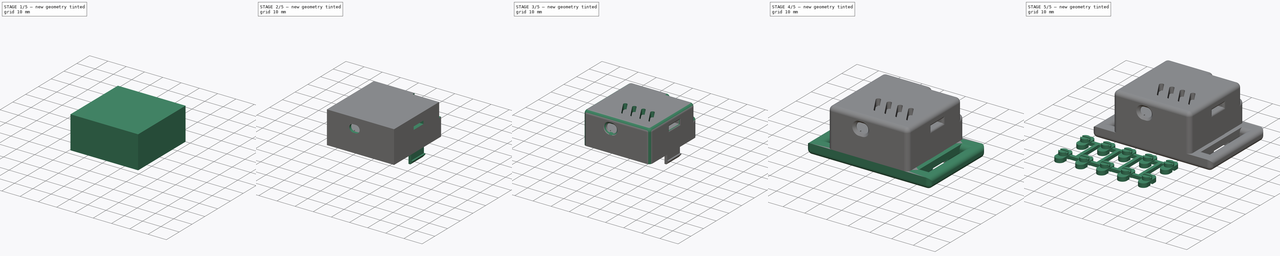
[diagram: build sequence overview — one tinted view per stage of 5, left to right]
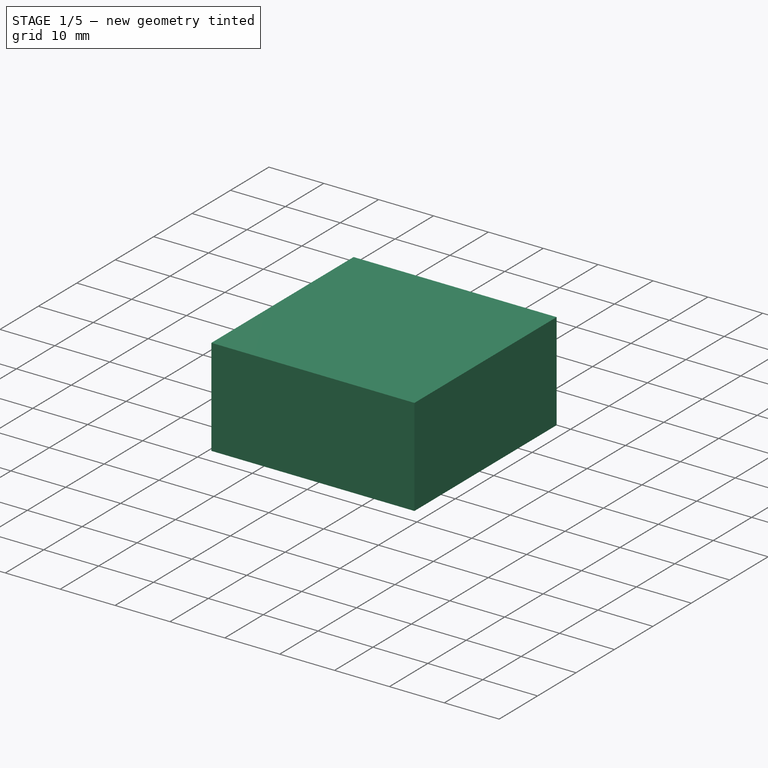
[diagram: stage 1 of 5 — iso view after this stage's code; geometry added in this stage tinted green]
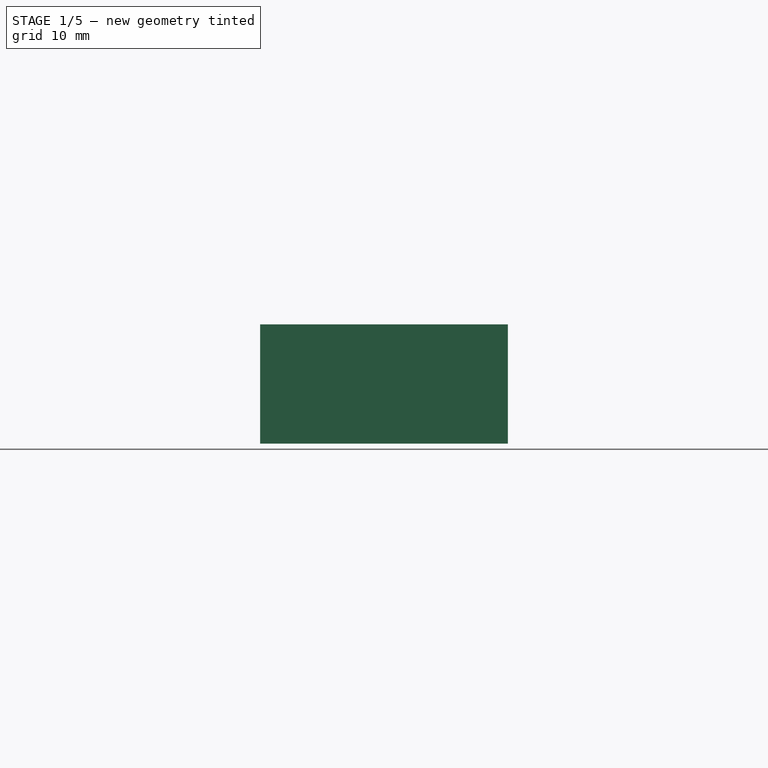
[diagram: stage 1 of 5 — front view after this stage's code; geometry added in this stage tinted green]
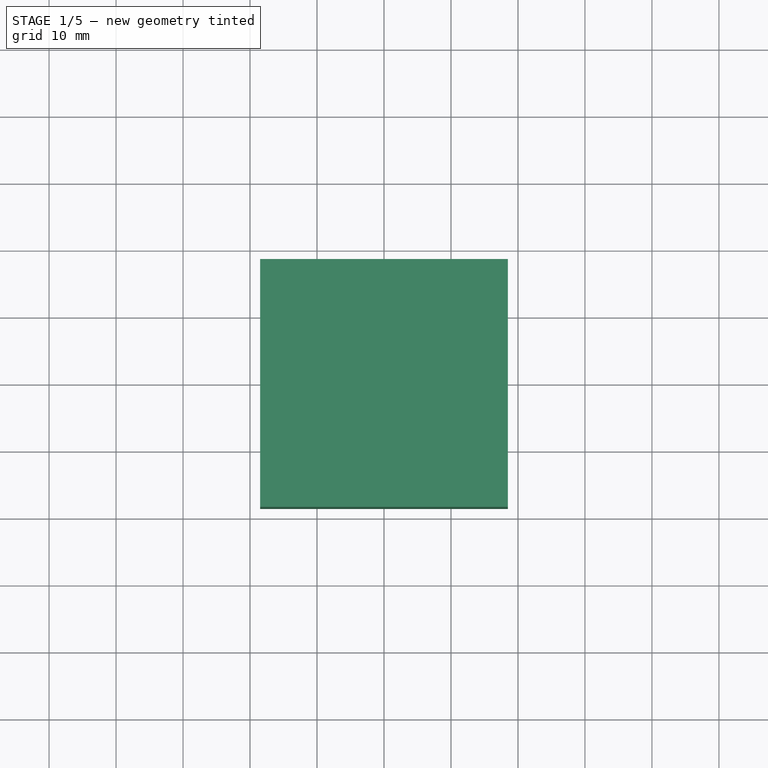
[diagram: stage 1 of 5 — top view after this stage's code; geometry added in this stage tinted green]
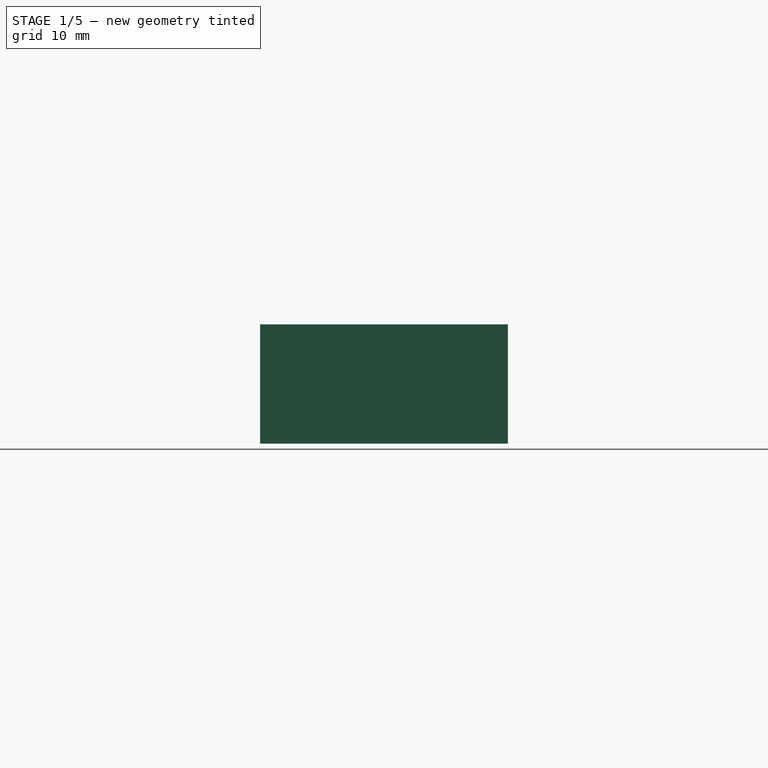
[diagram: stage 1 of 5 — right view after this stage's code; geometry added in this stage tinted green]
FCSTD DOCUMENT  (FreeCAD 1.0R39109 (Git))
Label: SlimeVRTracker
License: All rights reserved
LicenseURL: http://en.wikipedia.org/wiki/All_rights_reserved
objects: Sketcher::SketchObject×25, PartDesign::Pocket×15, PartDesign::Pad×9, PartDesign::Fillet×6, PartDesign::Body×4, App::DocumentObjectGroup×3, Part::FeaturePython×2, Spreadsheet::Sheet×1, App::VRMLObject×1, App::Link×1, Part::Fuse×1, PartDesign::Chamfer×1
note: 149 computed .brp shape members not serialized (recipe doc carries the construction recipe); baked Part::Feature solids carry a one-line shape summary decoded from their .brp

FEATURE [Spreadsheet::Sheet] Spreadsheet
  cells = A1='PCBThick; B1(PCBThick)==1.6 mm; A2='PCBWidth; B2(PCBWidth)==30 mm; A3='MaxCompHeight; B3(MaxCompHeight)==3.2 mm; A4='BattThick; B4(BattThick)==10 mm; A5='BattWidth; B5(BattWidth)==31 mm; A10='MinWallThick; B10(MinWallThick)==3 mm; A13='Tol; B13(Tol)==0.1 mm; A16='USBOffset; B16(USBOffset)==24.638 mm; A17='USBWidth; B17(USBWidth)==8.94 mm; A18='USBHeight; B18(USBHeight)==3.16 mm; A20='SWOffset; B20(SWOffset)==11.684 mm; A21='SWWIdth; B21(SWWIdth)==6.7 mm; A22='SWHeight; B22(SWHeight)==1.4 mm; A24='SWPWidth; B24(SWPWidth)==1.3 mm; A25='SWPStride; B25(SWPStride)==1.5 mm; A26='SWPSlot; B26(SWPSlot)==2.2 mm; A27='SWPLen; B27(SWPLen)==1.5 mm; A28='ExPortOffset; B28(ExPortOffset)==14.224 mm; A30='PCBSuppWidth; B30(PCBSuppWidth)==2 mm; A33='CaseWidth; B33(CaseWidth)==2 * MinWallThick + BattWidth; A34='CaseHeight; B34(CaseHeight)==2 * MinWallThick + BattThick + PCBThick + MaxCompHeight; A37='SWNDia; B37(SWNDia)==4 mm; A38='SWNExt; B38(SWNExt)==1 mm; A40='USBWidthOutter; B40(USBWidthOutter)==11.5 mm; A41='USBHeightOutter; B41(USBHeightOutter)==6.5 mm; A42='USBMargin; B42(USBMargin)==2 mm; A44='ExPortWidth; B44(ExPortWidth)==7.6 mm; A45='ExPortHeight; B45(ExPortHeight)==1.65 mm; A48='SnapFitWidth; B48(SnapFitWidth)==10 mm; A49='SnapFitCantileverLen; B49(SnapFitCantileverLen)==3 mm; A50='SnapFitCantileverThick; B50(SnapFitCantileverThick)==1.5 mm; A51='SnapFitNotchWidth; B51(SnapFitNotchWidth)==0.8 mm; A52='SnapFitNotchHeight; B52(SnapFitNotchHeight)==2 mm; A53='SnapFitTipWidth; B53(SnapFitTipWidth)==1 mm; A54='SnapFitNotchTipWidth; B54(SnapFitNotchTipWidth)==0.5 mm; A55='SnapFitHoleExtraWidth; B55(SnapFitHoleExtraWidth)==0.2 mm; A59='BracketThick; B59(BracketThick)==5 mm; A62='StrapWidth; B62(StrapWidth)==25 mm; A63='StrapThroughWidth; B63(StrapThroughWidth)==3 mm; A64='StrapLoopWidth; B64(StrapLoopWidth)==5 mm; A68='LugLen; B68(LugLen)==5 mm; A69='LugDepth; B69(LugDepth)==2 mm; A71='BaseMargin; B71(BaseMargin)==2 mm
FEATURE [Sketcher::SketchObject] Sketch
  ArcFitTolerance = 0
  AttachmentSupport = -> [XY_Plane]
  FullyConstrained = true
  MakeInternals = false
  MapMode = 5
  expr: Constraints[8] = <<Spreadsheet>>.CaseWidth
  expr: Constraints[9] = <<Spreadsheet>>.CaseWidth
  sketch-geometry (4):
    g0: LineSegment StartX=-18.5 StartY=18.5 StartZ=0 EndX=18.5 EndY=18.5 EndZ=0
    g1: LineSegment StartX=18.5 StartY=18.5 StartZ=0 EndX=18.5 EndY=-18.5 EndZ=0
    g2: LineSegment StartX=18.5 StartY=-18.5 StartZ=0 EndX=-18.5 EndY=-18.5 EndZ=0
    g3: LineSegment StartX=-18.5 StartY=-18.5 StartZ=0 EndX=-18.5 EndY=18.5 EndZ=0
  constraints (11):
    c: Coincident(g0,g1)
    c: Coincident(g1,g2)
    c: Coincident(g2,g3)
    c: Coincident(g3,g0)
    c: Horizontal(g0)
    c: Horizontal(g2)
    c: Vertical(g1)
    c: Vertical(g3)
    c: DistanceX(g0,g0) = 37
    c: DistanceY(g3,g3) = 37
    c: Symmetric(g0,g2,g-1)
FEATURE [PartDesign::Pad] Pad
  Direction = (0,0,1)
  Length = 17.8
  Length2 = 10
  Profile = -> Sketch
  ReferenceAxis = -> Sketch [N_Axis]
  Refine = true
  Suppressed = false
  Type = 0
  expr: Length = <<Spreadsheet>>.CaseHeight - <<Spreadsheet>>.MinWallThick
FEATURE [Sketcher::SketchObject] Sketch001
  ArcFitTolerance = 0
  AttachmentSupport = -> [XY_Plane]
  FullyConstrained = true
  MakeInternals = false
  MapMode = 5
  expr: Constraints[8] = Spreadsheet.PCBWidth + <<Spreadsheet>>.Tol
  expr: Constraints[9] = <<Spreadsheet>>.PCBWidth + <<Spreadsheet>>.Tol
  sketch-geometry (4):
    g0: LineSegment StartX=-15.05 StartY=15.05 StartZ=0 EndX=15.05 EndY=15.05 EndZ=0
    g1: LineSegment StartX=15.05 StartY=15.05 StartZ=0 EndX=15.05 EndY=-15.05 EndZ=0
    g2: LineSegment StartX=15.05 StartY=-15.05 StartZ=0 EndX=-15.05 EndY=-15.05 EndZ=0
    g3: LineSegment StartX=-15.05 StartY=-15.05 StartZ=0 EndX=-15.05 EndY=15.05 EndZ=0
  constraints (11):
    c: Coincident(g0,g1)
    c: Coincident(g1,g2)
    c: Coincident(g2,g3)
    c: Coincident(g3,g0)
    c: Horizontal(g0)
    c: Horizontal(g2)
    c: Vertical(g1)
    c: Vertical(g3)
    c: DistanceX(g0,g0) = 30.1
    c: DistanceY(g3,g3) = 30.1
    c: Symmetric(g0,g1,g-1)
FEATURE [PartDesign::Pocket] Pocket
  BaseFeature = -> Pad
  Direction = (0,0,-1)
  Length = 14.8
  Length2 = 5
  Profile = -> Sketch001
  ReferenceAxis = -> Sketch001 [N_Axis]
  Refine = true
  Reversed = true
  Suppressed = false
  Type = 0
  expr: Length = <<Spreadsheet>>.CaseHeight - 2 * <<Spreadsheet>>.MinWallThick
FEATURE [Sketcher::SketchObject] Sketch002
  ArcFitTolerance = 0
  AttachmentOffset = pos=(0,0,0) rot=(0,0,1;3.14159rad)
  AttachmentSupport = -> [Pocket]
  FullyConstrained = true
  MakeInternals = false
  MapMode = 5
  Placement = pos=(0,0,14.8) rot=(0,0,1;0rad)
  expr: Constraints[11] = <<Spreadsheet>>.PCBSuppWidth
  expr: Constraints[14] = <<Spreadsheet>>.PCBSuppWidth
  expr: Constraints[17] = <<Spreadsheet>>.PCBSuppWidth
  expr: Constraints[8] = <<Spreadsheet>>.PCBWidth
  expr: Constraints[9] = <<Spreadsheet>>.PCBWidth
  sketch-geometry (7):
    g0: Circle CenterX=1.018 CenterY=12.079 CenterZ=0 NormalX=0 NormalY=0 NormalZ=1 AngleXU=0 Radius=1
    g1: LineSegment [constr] StartX=-15 StartY=15 StartZ=0 EndX=15 EndY=15 EndZ=0
    g2: LineSegment [constr] StartX=15 StartY=15 StartZ=0 EndX=15 EndY=-15 EndZ=0
    g3: LineSegment [constr] StartX=15 StartY=-15 StartZ=0 EndX=-15 EndY=-15 EndZ=0
    g4: LineSegment [constr] StartX=-15 StartY=-15 StartZ=0 EndX=-15 EndY=15 EndZ=0
    g5: Circle CenterX=9.384 CenterY=-0.351 CenterZ=0 NormalX=0 NormalY=0 NormalZ=1 AngleXU=0 Radius=1
    g6: Circle CenterX=-7.888 CenterY=-4.939 CenterZ=0 NormalX=0 NormalY=0 NormalZ=1 AngleXU=0 Radius=1
  constraints (20):
    c: Coincident(g1,g2)
    c: Coincident(g2,g3)
    c: Coincident(g3,g4)
    c: Coincident(g4,g1)
    c: Horizontal(g1)
    c: Horizontal(g3)
    c: Vertical(g2)
    c: Vertical(g4)
    c: DistanceX(g1,g1) = 30
    c: DistanceY(g4,g4) = 30
    c: Symmetric(g1,g2,g-1)
    c: Diameter(g0) = 2
    c: DistanceX(g1,g0) = 16.018
    c: DistanceY(g0,g1) = 2.921
    c: Diameter(g5) = 2
    c: DistanceX(g1,g5) = 24.384
    c: DistanceY(g5,g1) = 15.351
    c: Diameter(g6) = 2
    c: DistanceX(g1,g6) = 7.112
    c: DistanceY(g6,g1) = 19.939
FEATURE [PartDesign::Pad] Pad001
  BaseFeature = -> Pocket
  Direction = (0,0,1)
  Length = 3.2
  Length2 = 10
  Profile = -> Sketch002
  ReferenceAxis = -> Sketch002 [N_Axis]
  Refine = true
  Reversed = true
  Suppressed = false
  Type = 0
  expr: Length = <<Spreadsheet>>.MaxCompHeight
FEATURE [Sketcher::SketchObject] Sketch003
  ArcFitTolerance = 0
  AttachmentSupport = -> [XY_Plane]
  FullyConstrained = true
  MakeInternals = false
  MapMode = 5
  expr: Constraints[8] = <<Spreadsheet>>.BattWidth
  expr: Constraints[9] = <<Spreadsheet>>.BattWidth
  sketch-geometry (4):
    g0: LineSegment StartX=-15.5 StartY=15.5 StartZ=0 EndX=15.5 EndY=15.5 EndZ=0
    g1: LineSegment StartX=15.5 StartY=15.5 StartZ=0 EndX=15.5 EndY=-15.5 EndZ=0
    g2: LineSegment StartX=15.5 StartY=-15.5 StartZ=0 EndX=-15.5 EndY=-15.5 EndZ=0
    g3: LineSegment StartX=-15.5 StartY=-15.5 StartZ=0 EndX=-15.5 EndY=15.5 EndZ=0
  constraints (11):
    c: Coincident(g0,g1)
    c: Coincident(g1,g2)
    c: Coincident(g2,g3)
    c: Coincident(g3,g0)
    c: Horizontal(g0)
    c: Horizontal(g2)
    c: Vertical(g1)
    c: Vertical(g3)
    c: DistanceX(g0,g0) = 31
    c: DistanceY(g3,g3) = 31
    c: Symmetric(g0,g1,g-1)
FEATURE [PartDesign::Pocket] Pocket001
  BaseFeature = -> Pad001
  Direction = (0,0,-1)
  Length = 10
  Length2 = 5
  Profile = -> Sketch003
  ReferenceAxis = -> Sketch003 [N_Axis]
  Refine = true
  Reversed = true
  Suppressed = false
  Type = 0
  expr: Length = Spreadsheet.BattThick
FEATURE [App::VRMLObject] SlimeVR_Tracker  label="PCB"
  Placement = pos=(0,0,10.8) rot=(0,0,1;0rad)
  expr: .Placement.Base.z = <<Spreadsheet>>.CaseHeight - 2 * <<Spreadsheet>>.MinWallThick - <<Spreadsheet>>.MaxCompHeight - <<Spreadsheet>>.PCBThick / 2
FEATURE [Sketcher::SketchObject] Sketch004
  ArcFitTolerance = 0
  AttachmentSupport = -> [XY_Plane]
  FullyConstrained = true
  MakeInternals = false
  MapMode = 5
  expr: Constraints[19] = <<Spreadsheet>>.SWPSlot
  expr: Constraints[20] = <<Spreadsheet>>.SWPLen + <<Spreadsheet>>.Tol
  expr: Constraints[22] = <<Spreadsheet>>.SWOffset - <<Spreadsheet>>.SWPSlot / 2 - Spreadsheet.SWPStride / 2
  expr: Constraints[8] = <<Spreadsheet>>.PCBWidth
  expr: Constraints[9] = <<Spreadsheet>>.PCBWidth
  sketch-geometry (8):
    g0: LineSegment [constr] StartX=-15 StartY=15 StartZ=0 EndX=15 EndY=15 EndZ=0
    g1: LineSegment [constr] StartX=15 StartY=15 StartZ=0 EndX=15 EndY=-15 EndZ=0
    g2: LineSegment [constr] StartX=15 StartY=-15 StartZ=0 EndX=-15 EndY=-15 EndZ=0
    g3: LineSegment [constr] StartX=-15 StartY=-15 StartZ=0 EndX=-15 EndY=15 EndZ=0
    g4: LineSegment StartX=-5.166 StartY=-15 StartZ=0 EndX=-2.966 EndY=-15 EndZ=0
    g5: LineSegment StartX=-2.966 StartY=-15 StartZ=0 EndX=-2.966 EndY=-16.6 EndZ=0
    g6: LineSegment StartX=-2.966 StartY=-16.6 StartZ=0 EndX=-5.166 EndY=-16.6 EndZ=0
    g7: LineSegment StartX=-5.166 StartY=-16.6 StartZ=0 EndX=-5.166 EndY=-15 EndZ=0
  constraints (23):
    c: Coincident(g0,g1)
    c: Coincident(g1,g2)
    c: Coincident(g2,g3)
    c: Coincident(g3,g0)
    c: Horizontal(g0)
    c: Horizontal(g2)
    c: Vertical(g1)
    c: Vertical(g3)
    c: DistanceX(g0,g0) = 30
    c: DistanceY(g3,g3) = 30
    c: Symmetric(g0,g1,g-1)
    c: Coincident(g4,g5)
    c: Coincident(g5,g6)
    c: Coincident(g6,g7)
    c: Coincident(g7,g4)
    c: Horizontal(g4)
    c: Horizontal(g6)
    c: Vertical(g5)
    c: Vertical(g7)
    c: DistanceX(g4,g4) = 2.2
    c: DistanceY(g7,g7) = 1.6
    c: PointOnObject(g4,g2)
    c: DistanceX(g2,g4) = 9.834
FEATURE [PartDesign::Pocket] Pocket002
  BaseFeature = -> Pocket001
  Direction = (0,0,-1)
  Length = 10
  Length2 = 5
  Profile = -> Sketch004
  ReferenceAxis = -> Sketch004 [N_Axis]
  Refine = true
  Reversed = true
  Suppressed = false
  Type = 0
  expr: Length = <<Spreadsheet>>.CaseHeight - 2 * <<Spreadsheet>>.MinWallThick - Spreadsheet.MaxCompHeight - <<Spreadsheet>>.PCBThick
FEATURE [Sketcher::SketchObject] Sketch005
  ArcFitTolerance = 0
  AttachmentSupport = -> [Pocket002]
  FullyConstrained = true
  MakeInternals = false
  MapMode = 5
  Placement = pos=(0,-15.05,0) rot=(0,0.707107,0.707107;3.14159rad)
  expr: Constraints[15] = <<Spreadsheet>>.PCBWidth
  expr: Constraints[16] = <<Spreadsheet>>.PCBThick
  expr: Constraints[18] = <<Spreadsheet>>.CaseHeight - 2 * <<Spreadsheet>>.MinWallThick - <<Spreadsheet>>.MaxCompHeight
  expr: Constraints[20] = <<Spreadsheet>>.SWOffset - <<Spreadsheet>>.SWPStride / 2 - <<Spreadsheet>>.SWPStride - <<Spreadsheet>>.SWNExt
  expr: Constraints[6] = <<Spreadsheet>>.SWNDia / 2 + 2 * <<Spreadsheet>>.Tol
  expr: Constraints[7] = 3 * <<Spreadsheet>>.SWPStride + 2 * <<Spreadsheet>>.SWNExt
  sketch-geometry (8):
    g0: ArcOfCircle CenterX=0.066 CenterY=12.2 CenterZ=0 NormalX=0 NormalY=0 NormalZ=1 AngleXU=0 Radius=2.2 StartAngle=1.5708 EndAngle=4.71239
    g1: ArcOfCircle CenterX=6.566 CenterY=12.2 CenterZ=0 NormalX=0 NormalY=0 NormalZ=1 AngleXU=0 Radius=2.2 StartAngle=4.71239 EndAngle=7.85398
    g2: LineSegment StartX=0.066 StartY=10 StartZ=0 EndX=6.566 EndY=10 EndZ=0
    g3: LineSegment StartX=6.566 StartY=14.4 StartZ=0 EndX=0.066 EndY=14.4 EndZ=0
    g4: LineSegment [constr] StartX=15 StartY=11.6 StartZ=0 EndX=-15 EndY=11.6 EndZ=0
    g5: LineSegment [constr] StartX=-15 StartY=11.6 StartZ=0 EndX=-15 EndY=10 EndZ=0
    g6: LineSegment [constr] StartX=-15 StartY=10 StartZ=0 EndX=15 EndY=10 EndZ=0
    g7: LineSegment [constr] StartX=15 StartY=10 StartZ=0 EndX=15 EndY=11.6 EndZ=0
  constraints (21):
    c: Tangent(g0,g2) = -1.5708
    c: Tangent(g2,g1) = -1.5708
    c: Tangent(g1,g3) = -1.5708
    c: Tangent(g3,g0) = -1.5708
    c: Equal(g0,g1)
    c: Horizontal(g2)
    c: Radius(g1) = 2.2
    c: DistanceX(g3,g3) = 6.5
    c: Coincident(g4,g5)
    c: Coincident(g5,g6)
    c: Coincident(g6,g7)
    c: Coincident(g7,g4)
    c: Horizontal(g4)
    c: Vertical(g5)
    c: Vertical(g7)
    c: DistanceX(g4,g4) = 30
    c: DistanceY(g5,g5) = 1.6
    c: Symmetric(g5,g6,g-2)
    c: DistanceY(g-1,g4) = 11.6
    c: PointOnObject(g0,g6)
    c: DistanceX(g1,g6) = 8.434
FEATURE [PartDesign::Pocket] Pocket003
  BaseFeature = -> Pocket002
  Direction = (0,-1,2e-16)
  Length = 2
  Length2 = 5
  Profile = -> Sketch005
  ReferenceAxis = -> Sketch005 [N_Axis]
  Refine = true
  Suppressed = false
  Type = 0
  expr: Length = (<<Spreadsheet>>.CaseWidth - <<Spreadsheet>>.PCBWidth - <<Spreadsheet>>.MinWallThick) / 2
FEATURE [Sketcher::SketchObject] Sketch014
  ArcFitTolerance = 0
  AttachmentSupport = -> [XY_Plane002]
  FullyConstrained = true
  MakeInternals = false
  MapMode = 5
  sketch-geometry (4):
    g0: LineSegment StartX=-15 StartY=15 StartZ=0 EndX=15 EndY=15 EndZ=0
    g1: LineSegment StartX=15 StartY=15 StartZ=0 EndX=15 EndY=-15 EndZ=0
    g2: LineSegment StartX=15 StartY=-15 StartZ=0 EndX=-15 EndY=-15 EndZ=0
    g3: LineSegment StartX=-15 StartY=-15 StartZ=0 EndX=-15 EndY=15 EndZ=0
  constraints (11):
    c: Coincident(g0,g1)
    c: Coincident(g1,g2)
    c: Coincident(g2,g3)
    c: Coincident(g3,g0)
    c: Horizontal(g0)
    c: Horizontal(g2)
    c: Vertical(g1)
    c: Vertical(g3)
    c: Symmetric(g0,g1,g-1)
    c: DistanceX(g0,g0) = 30
    c: DistanceY(g3,g3) = 30
FEATURE [PartDesign::Pad] Pad004
  Direction = (0,0,1)
  Length = 8
  Length2 = 10
  Profile = -> Sketch014
  ReferenceAxis = -> Sketch014 [N_Axis]
  Suppressed = false
  Type = 0
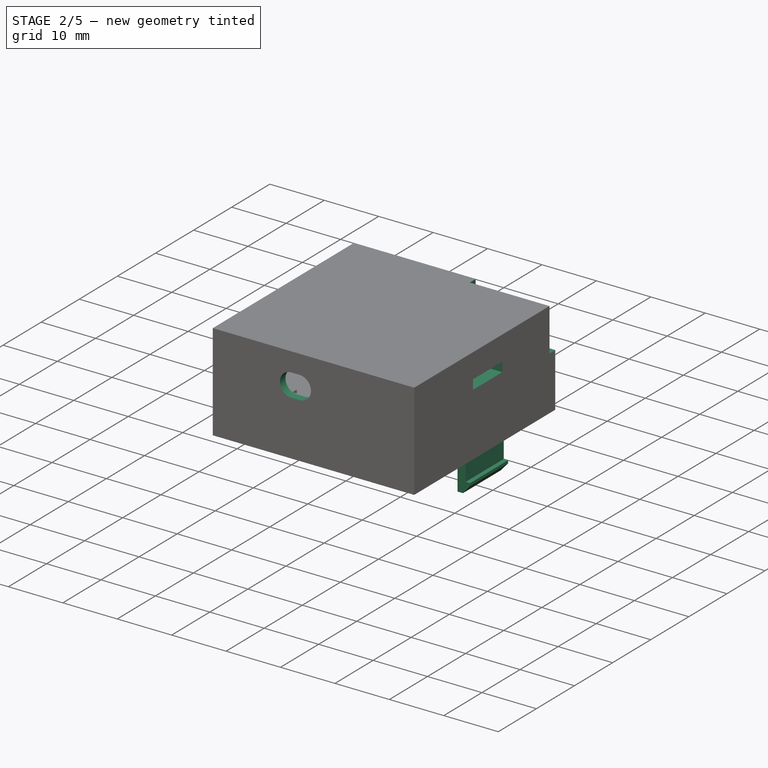
[diagram: stage 2 of 5 — iso view after this stage's code; geometry added in this stage tinted green]
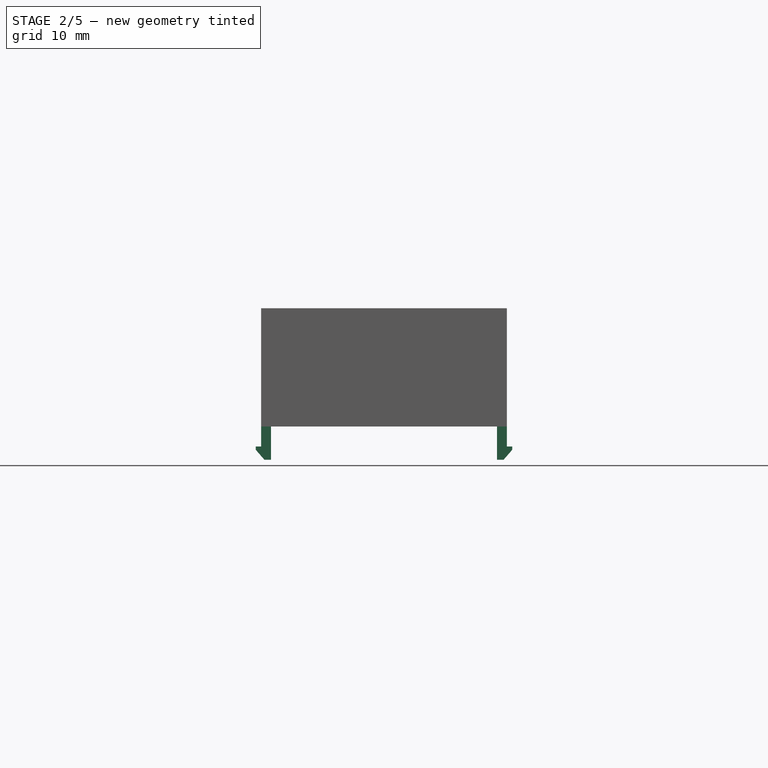
[diagram: stage 2 of 5 — front view after this stage's code; geometry added in this stage tinted green]
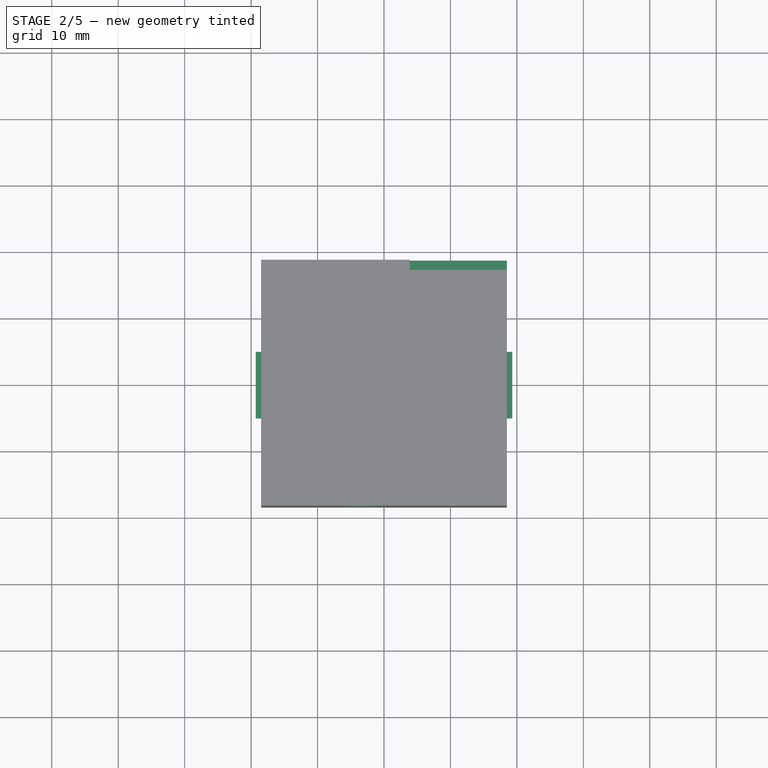
[diagram: stage 2 of 5 — top view after this stage's code; geometry added in this stage tinted green]
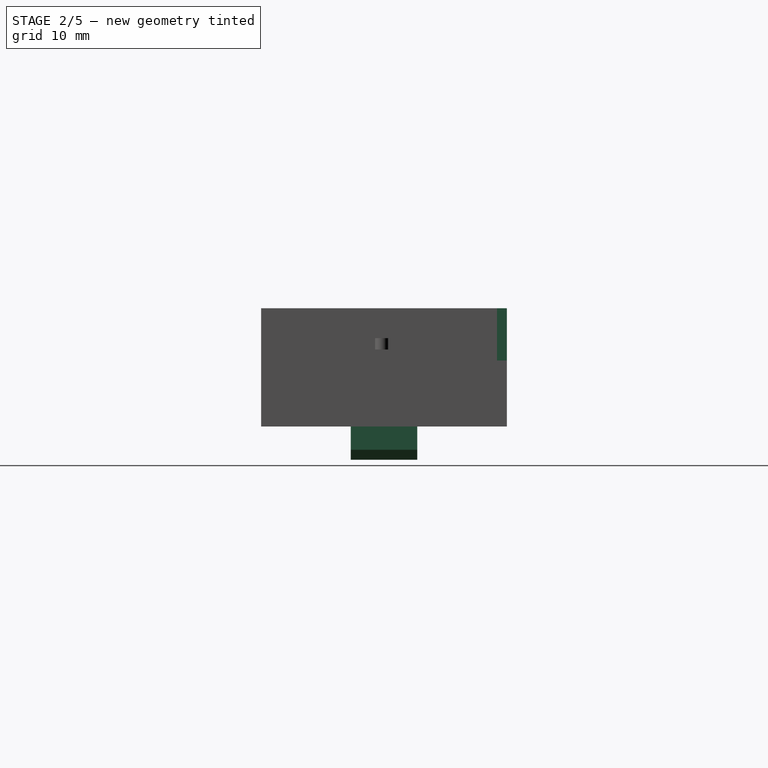
[diagram: stage 2 of 5 — right view after this stage's code; geometry added in this stage tinted green]
FEATURE [Sketcher::SketchObject] Sketch006
  ArcFitTolerance = 0
  AttachmentSupport = -> [Pocket003]
  FullyConstrained = true
  MakeInternals = false
  MapMode = 5
  Placement = pos=(0,-17.05,7.7e-15) rot=(0,0.707107,0.707107;3.14159rad)
  expr: Constraints[10] = <<Spreadsheet>>.CaseHeight - 2 * <<Spreadsheet>>.MinWallThick - <<Spreadsheet>>.MaxCompHeight
  expr: Constraints[17] = Spreadsheet.SWNDia / 2 + <<Spreadsheet>>.Tol
  expr: Constraints[18] = <<Spreadsheet>>.SWPStride
  expr: Constraints[19] = <<Spreadsheet>>.SWOffset - <<Spreadsheet>>.SWPStride / 2
  expr: Constraints[20] = <<Spreadsheet>>.Tol
  expr: Constraints[7] = <<Spreadsheet>>.PCBWidth
  expr: Constraints[8] = <<Spreadsheet>>.PCBThick
  sketch-geometry (8):
    g0: LineSegment [constr] StartX=-15 StartY=11.6 StartZ=0 EndX=15 EndY=11.6 EndZ=0
    g1: LineSegment [constr] StartX=15 StartY=11.6 StartZ=0 EndX=15 EndY=10 EndZ=0
    g2: LineSegment [constr] StartX=15 StartY=10 StartZ=0 EndX=-15 EndY=10 EndZ=0
    g3: LineSegment [constr] StartX=-15 StartY=10 StartZ=0 EndX=-15 EndY=11.6 EndZ=0
    g4: ArcOfCircle CenterX=2.566 CenterY=12.2 CenterZ=0 NormalX=0 NormalY=0 NormalZ=1 AngleXU=0 Radius=2.1 StartAngle=1.5708 EndAngle=4.71239
    g5: ArcOfCircle CenterX=4.066 CenterY=12.2 CenterZ=0 NormalX=0 NormalY=0 NormalZ=1 AngleXU=0 Radius=2.1 StartAngle=4.71239 EndAngle=7.85398
    g6: LineSegment StartX=2.566 StartY=10.1 StartZ=0 EndX=4.066 EndY=10.1 EndZ=0
    g7: LineSegment StartX=4.066 StartY=14.3 StartZ=0 EndX=2.566 EndY=14.3 EndZ=0
  constraints (21):
    c: Coincident(g0,g1)
    c: Coincident(g1,g2)
    c: Coincident(g2,g3)
    c: Coincident(g3,g0)
    c: Horizontal(g0)
    c: Vertical(g1)
    c: Vertical(g3)
    c: DistanceX(g0,g0) = 30
    c: DistanceY(g3,g3) = 1.6
    c: Symmetric(g2,g1,g-2)
    c: DistanceY(g-1,g0) = 11.6
    c: Tangent(g4,g6) = -1.5708
    c: Tangent(g6,g5) = -1.5708
    c: Tangent(g5,g7) = -1.5708
    c: Tangent(g7,g4) = -1.5708
    c: Equal(g4,g5)
    c: Horizontal(g6)
    c: Radius(g5) = 2.1
    c: DistanceX(g7,g7) = 1.5
    c: DistanceX(g5,g1) = 10.934
    c: DistanceY(g1,g5) = 0.1
FEATURE [PartDesign::Pocket] Pocket004
  BaseFeature = -> Pocket003
  Direction = (0,-1,2e-16)
  Length = 1.5
  Length2 = 5
  Profile = -> Sketch006
  ReferenceAxis = -> Sketch006 [N_Axis]
  Refine = true
  Suppressed = false
  Type = 0
  expr: Length = <<Spreadsheet>>.MinWallThick / 2
FEATURE [PartDesign::Body] Body001  label="Switch"
  AllowCompound = false
  Group = -> [Sketch007,Pad002,Sketch008,Pad003,Sketch009,Pocket005,Sketch010,Pocket006]
  Origin = -> Origin001
  Placement = pos=(-4.066,-15.05,12.2) rot=(0,0,1;0rad)
  Tip = -> Pocket006
  expr: .Placement.Base.x = -<<Spreadsheet>>.PCBWidth / 2 + <<Spreadsheet>>.SWOffset - <<Spreadsheet>>.SWPStride / 2
  expr: .Placement.Base.y = -<<Spreadsheet>>.PCBWidth / 2 - <<Spreadsheet>>.Tol / 2
  expr: .Placement.Base.z = <<Spreadsheet>>.CaseHeight - 2 * <<Spreadsheet>>.MinWallThick - <<Spreadsheet>>.MaxCompHeight - <<Spreadsheet>>.PCBThick + <<Spreadsheet>>.SWNDia / 2 + 2 * <<Spreadsheet>>.Tol
FEATURE [Sketcher::SketchObject] Sketch011
  ArcFitTolerance = 0
  AttachmentSupport = -> [Pocket004]
  FullyConstrained = true
  MakeInternals = false
  MapMode = 5
  Placement = pos=(0,15.05,0) rot=(1,0,0;1.5708rad)
  expr: Constraints[10] = <<Spreadsheet>>.CaseHeight - 2 * <<Spreadsheet>>.MinWallThick - <<Spreadsheet>>.MaxCompHeight
  expr: Constraints[19] = <<Spreadsheet>>.USBWidth
  expr: Constraints[20] = <<Spreadsheet>>.USBHeight
  expr: Constraints[22] = <<Spreadsheet>>.USBOffset - <<Spreadsheet>>.USBWidth / 2
  expr: Constraints[7] = <<Spreadsheet>>.PCBWidth
  expr: Constraints[8] = <<Spreadsheet>>.PCBThick
  sketch-geometry (8):
    g0: LineSegment [constr] StartX=-15 StartY=11.6 StartZ=0 EndX=15 EndY=11.6 EndZ=0
    g1: LineSegment [constr] StartX=15 StartY=11.6 StartZ=0 EndX=15 EndY=10 EndZ=0
    g2: LineSegment [constr] StartX=15 StartY=10 StartZ=0 EndX=-15 EndY=10 EndZ=0
    g3: LineSegment [constr] StartX=-15 StartY=10 StartZ=0 EndX=-15 EndY=11.6 EndZ=0
    g4: LineSegment StartX=5.168 StartY=14.76 StartZ=0 EndX=14.108 EndY=14.76 EndZ=0
    g5: LineSegment StartX=14.108 StartY=14.76 StartZ=0 EndX=14.108 EndY=11.6 EndZ=0
    g6: LineSegment StartX=14.108 StartY=11.6 StartZ=0 EndX=5.168 EndY=11.6 EndZ=0
    g7: LineSegment StartX=5.168 StartY=11.6 StartZ=0 EndX=5.168 EndY=14.76 EndZ=0
  constraints (23):
    c: Coincident(g0,g1)
    c: Coincident(g1,g2)
    c: Coincident(g2,g3)
    c: Coincident(g3,g0)
    c: Horizontal(g0)
    c: Vertical(g1)
    c: Vertical(g3)
    c: DistanceX(g0,g0) = 30
    c: DistanceY(g3,g3) = 1.6
    c: Symmetric(g2,g1,g-2)
    c: DistanceY(g-1,g0) = 11.6
    c: Coincident(g4,g5)
    c: Coincident(g5,g6)
    c: Coincident(g6,g7)
    c: Coincident(g7,g4)
    c: Horizontal(g4)
    c: Horizontal(g6)
    c: Vertical(g5)
    c: Vertical(g7)
    c: DistanceX(g4,g4) = 8.94
    c: DistanceY(g7,g7) = 3.16
    c: PointOnObject(g5,g0)
    c: DistanceX(g0,g6) = 20.168
FEATURE [PartDesign::Pocket] Pocket007
  BaseFeature = -> Pocket004
  Direction = (0,1,-2e-16)
  Length = 3.5
  Length2 = 5
  Profile = -> Sketch011
  ReferenceAxis = -> Sketch011 [N_Axis]
  Refine = true
  Suppressed = false
  Type = 0
  expr: Length = (<<Spreadsheet>>.CaseWidth - <<Spreadsheet>>.PCBWidth) / 2
FEATURE [Sketcher::SketchObject] Sketch012
  ArcFitTolerance = 0
  AttachmentSupport = -> [Pocket007]
  FullyConstrained = true
  MakeInternals = false
  MapMode = 5
  Placement = pos=(0,18.5,0) rot=(0,0.707107,0.707107;3.14159rad)
  expr: Constraints[10] = <<Spreadsheet>>.CaseHeight - 2 * <<Spreadsheet>>.MinWallThick - <<Spreadsheet>>.MaxCompHeight
  expr: Constraints[19] = <<Spreadsheet>>.USBWidthOutter
  expr: Constraints[20] = <<Spreadsheet>>.USBHeightOutter
  expr: Constraints[21] = <<Spreadsheet>>.USBOffset
  expr: Constraints[22] = <<Spreadsheet>>.USBHeight / 2
  expr: Constraints[26] = <<Spreadsheet>>.PCBThick + <<Spreadsheet>>.MaxCompHeight + <<Spreadsheet>>.MinWallThick
  expr: Constraints[29] = <<Spreadsheet>>.CaseWidth / 2
  expr: Constraints[7] = <<Spreadsheet>>.PCBWidth
  expr: Constraints[8] = <<Spreadsheet>>.PCBThick
  sketch-geometry (15):
    g0: LineSegment [constr] StartX=-15 StartY=11.6 StartZ=0 EndX=15 EndY=11.6 EndZ=0
    g1: LineSegment [constr] StartX=15 StartY=11.6 StartZ=0 EndX=15 EndY=10 EndZ=0
    g2: LineSegment [constr] StartX=15 StartY=10 StartZ=0 EndX=-15 EndY=10 EndZ=0
    g3: LineSegment [constr] StartX=-15 StartY=10 StartZ=0 EndX=-15 EndY=11.6 EndZ=0
    g4: LineSegment [constr] StartX=-15.388 StartY=16.43 StartZ=0 EndX=-3.888 EndY=16.43 EndZ=0
    g5: LineSegment [constr] StartX=-3.888 StartY=16.43 StartZ=0 EndX=-3.888 EndY=9.93 EndZ=0
    g6: LineSegment [constr] StartX=-3.888 StartY=9.93 StartZ=0 EndX=-15.388 EndY=9.93 EndZ=0
    g7: LineSegment [constr] StartX=-15.388 StartY=9.93 StartZ=0 EndX=-15.388 EndY=16.43 EndZ=0
    g8: GeomPoint [constr] X=-9.638 Y=13.18 Z=0
    g9: LineSegment [constr] StartX=6e-16 StartY=10 StartZ=0 EndX=0 EndY=17.8 EndZ=0
    g10: LineSegment [constr] StartX=0 StartY=0 StartZ=0 EndX=-18.5 EndY=0 EndZ=0
    g11: LineSegment StartX=-3.888 StartY=9.93 StartZ=0 EndX=-3.888 EndY=17.8 EndZ=0
    g12: LineSegment StartX=-3.888 StartY=17.8 StartZ=0 EndX=-18.5 EndY=17.8 EndZ=0
    g13: LineSegment StartX=-18.5 StartY=17.8 StartZ=0 EndX=-18.5 EndY=9.93 EndZ=0
    g14: LineSegment StartX=-18.5 StartY=9.93 StartZ=0 EndX=-3.888 EndY=9.93 EndZ=0
  constraints (41):
    c: Coincident(g0,g1)
    c: Coincident(g1,g2)
    c: Coincident(g2,g3)
    c: Coincident(g3,g0)
    c: Horizontal(g0)
    c: Vertical(g1)
    c: Vertical(g3)
    c: DistanceX(g0,g0) = 30
    c: DistanceY(g3,g3) = 1.6
    c: Symmetric(g2,g1,g-2)
    c: DistanceY(g-1,g0) = 11.6
    c: Coincident(g4,g5)
    c: Coincident(g5,g6)
    c: Coincident(g6,g7)
    c: Coincident(g7,g4)
    c: Horizontal(g4)
    c: Horizontal(g6)
    c: Vertical(g5)
    c: Vertical(g7)
    c: DistanceX(g4,g4) = 11.5
    c: DistanceY(g7,g7) = 6.5
    c: DistanceX(g8,g0) = 24.638
    c: DistanceY(g0,g8) = 1.58
    c: Symmetric(g4,g5,g8)
    c: Symmetric(g2,g2,g9)
    c: PointOnObject(g9,g-2)
    c: DistanceY(g9,g9) = 7.8
    c: Coincident(g10,g-1)
    c: PointOnObject(g10,g-1)
    c: DistanceX(g10,g10) = 18.5
    c: Coincident(g11,g12)
    c: Coincident(g12,g13)
    c: Coincident(g13,g14)
    c: Coincident(g14,g11)
    c: Vertical(g11)
    c: Vertical(g13)
    c: Horizontal(g12)
    c: Horizontal(g14)
    c: Coincident(g11,g5)
    c: Horizontal(g11,g9)
    c: Vertical(g13,g10)
FEATURE [PartDesign::Pocket] Pocket008
  BaseFeature = -> Pocket007
  Direction = (0,-1,2e-16)
  Length = 1.5
  Length2 = 5
  Profile = -> Sketch012
  ReferenceAxis = -> Sketch012 [N_Axis]
  Refine = true
  Suppressed = false
  Type = 0
  expr: Length = (<<Spreadsheet>>.CaseWidth - <<Spreadsheet>>.PCBWidth) / 2 - <<Spreadsheet>>.USBMargin
FEATURE [Sketcher::SketchObject] Sketch013
  ArcFitTolerance = 0
  AttachmentSupport = -> [Pocket008]
  FullyConstrained = true
  MakeInternals = false
  MapMode = 5
  Placement = pos=(15.05,0,0) rot=(0.57735,-0.57735,-0.57735;2.0944rad)
  expr: Constraints[10] = <<Spreadsheet>>.CaseHeight - 2 * <<Spreadsheet>>.MinWallThick - <<Spreadsheet>>.MaxCompHeight
  expr: Constraints[19] = <<Spreadsheet>>.ExPortWidth + <<Spreadsheet>>.Tol
  expr: Constraints[20] = <<Spreadsheet>>.ExPortHeight + <<Spreadsheet>>.Tol
  expr: Constraints[21] = <<Spreadsheet>>.ExPortOffset - <<Spreadsheet>>.ExPortWidth / 2 - <<Spreadsheet>>.Tol / 2
  expr: Constraints[22] = <<Spreadsheet>>.Tol / 2
  expr: Constraints[7] = <<Spreadsheet>>.PCBWidth
  expr: Constraints[8] = <<Spreadsheet>>.PCBThick
  sketch-geometry (8):
    g0: LineSegment [constr] StartX=-15 StartY=11.6 StartZ=0 EndX=15 EndY=11.6 EndZ=0
    g1: LineSegment [constr] StartX=15 StartY=11.6 StartZ=0 EndX=15 EndY=10 EndZ=0
    g2: LineSegment [constr] StartX=15 StartY=10 StartZ=0 EndX=-15 EndY=10 EndZ=0
    g3: LineSegment [constr] StartX=-15 StartY=10 StartZ=0 EndX=-15 EndY=11.6 EndZ=0
    g4: LineSegment StartX=-4.626 StartY=13.3 StartZ=0 EndX=3.074 EndY=13.3 EndZ=0
    g5: LineSegment StartX=3.074 StartY=13.3 StartZ=0 EndX=3.074 EndY=11.55 EndZ=0
    g6: LineSegment StartX=3.074 StartY=11.55 StartZ=0 EndX=-4.626 EndY=11.55 EndZ=0
    g7: LineSegment StartX=-4.626 StartY=11.55 StartZ=0 EndX=-4.626 EndY=13.3 EndZ=0
  constraints (23):
    c: Coincident(g0,g1)
    c: Coincident(g1,g2)
    c: Coincident(g2,g3)
    c: Coincident(g3,g0)
    c: Horizontal(g0)
    c: Vertical(g1)
    c: Vertical(g3)
    c: DistanceX(g0,g0) = 30
    c: DistanceY(g3,g3) = 1.6
    c: Symmetric(g2,g1,g-2)
    c: DistanceY(g-1,g0) = 11.6
    c: Coincident(g4,g5)
    c: Coincident(g5,g6)
    c: Coincident(g6,g7)
    c: Coincident(g7,g4)
    c: Horizontal(g4)
    c: Horizontal(g6)
    c: Vertical(g5)
    c: Vertical(g7)
    c: DistanceX(g4,g4) = 7.7
    c: DistanceY(g7,g7) = 1.75
    c: DistanceX(g0,g6) = 10.374
    c: DistanceY(g6,g0) = 0.05
FEATURE [PartDesign::Pocket] Pocket009
  BaseFeature = -> Pocket008
  Direction = (1,0,0)
  Length = 3.5
  Length2 = 5
  Profile = -> Sketch013
  ReferenceAxis = -> Sketch013 [N_Axis]
  Refine = true
  Suppressed = false
  Type = 0
  expr: Length = (<<Spreadsheet>>.CaseWidth - <<Spreadsheet>>.PCBWidth) / 2
FEATURE [PartDesign::Body] Body002  label="Batt"
  AllowCompound = false
  Group = -> [Sketch014,Pad004]
  Origin = -> Origin002
  Tip = -> Pad004
FEATURE [Sketcher::SketchObject] Sketch015
  ArcFitTolerance = 0
  AttachmentSupport = -> [XZ_Plane]
  FullyConstrained = true
  MakeInternals = false
  MapMode = 5
  Placement = pos=(0,0,0) rot=(1,0,0;1.5708rad)
  expr: Constraints[10] = <<Spreadsheet>>.SnapFitCantileverThick
  expr: Constraints[11] = <<Spreadsheet>>.SnapFitCantileverLen
  expr: Constraints[12] = Spreadsheet.SnapFitNotchHeight
  expr: Constraints[13] = <<Spreadsheet>>.SnapFitTipWidth
  expr: Constraints[16] = Spreadsheet.SnapFitNotchTipWidth
  expr: Constraints[29] = <<Spreadsheet>>.SnapFitCantileverThick
  expr: Constraints[30] = <<Spreadsheet>>.SnapFitTipWidth
  expr: Constraints[31] = <<Spreadsheet>>.SnapFitCantileverLen
  expr: Constraints[33] = Spreadsheet.SnapFitNotchHeight
  expr: Constraints[34] = Spreadsheet.SnapFitNotchTipWidth
  expr: Constraints[37] = <<Spreadsheet>>.CaseWidth
  expr: Constraints[39] = <<Spreadsheet>>.SnapFitNotchWidth
  expr: Constraints[40] = <<Spreadsheet>>.SnapFitNotchWidth
  sketch-geometry (14):
    g0: LineSegment StartX=-17 StartY=0 StartZ=0 EndX=-18.5 EndY=0 EndZ=0
    g1: LineSegment StartX=-18.5 StartY=0 StartZ=0 EndX=-18.5 EndY=-3 EndZ=0
    g2: LineSegment StartX=-18.5 StartY=-3 StartZ=0 EndX=-19.3 EndY=-3 EndZ=0
    g3: LineSegment StartX=-18 StartY=-5 StartZ=0 EndX=-17 EndY=-5 EndZ=0
    g4: LineSegment StartX=-17 StartY=-5 StartZ=0 EndX=-17 EndY=0 EndZ=0
    g5: LineSegment StartX=-19.3 StartY=-3 StartZ=0 EndX=-19.3 EndY=-3.5 EndZ=0
    g6: LineSegment StartX=-19.3 StartY=-3.5 StartZ=0 EndX=-18 EndY=-5 EndZ=0
    g7: LineSegment StartX=17 StartY=0 StartZ=0 EndX=18.5 EndY=0 EndZ=0
    g8: LineSegment StartX=18.5 StartY=0 StartZ=0 EndX=18.5 EndY=-3 EndZ=0
    g9: LineSegment StartX=18.5 StartY=-3 StartZ=0 EndX=19.3 EndY=-3 EndZ=0
    g10: LineSegment StartX=18 StartY=-5 StartZ=0 EndX=17 EndY=-5 EndZ=0
    g11: LineSegment StartX=17 StartY=-5 StartZ=0 EndX=17 EndY=0 EndZ=0
    g12: LineSegment StartX=19.3 StartY=-3 StartZ=0 EndX=19.3 EndY=-3.5 EndZ=0
    g13: LineSegment StartX=18 StartY=-5 StartZ=0 EndX=19.3 EndY=-3.5 EndZ=0
  constraints (41):
    c: PointOnObject(g0,g-1)
    c: PointOnObject(g0,g-1)
    c: Vertical(g1)
    c: Coincident(g2,g1)
    c: Horizontal(g2)
    c: Horizontal(g3)
    c: Coincident(g4,g3)
    c: Coincident(g4,g0)
    c: Vertical(g4)
    c: Coincident(g0,g1)
    c: DistanceX(g0,g0) = 1.5
    c: DistanceY(g1,g1) = 3
    c: DistanceY(g3,g2) = 2
    c: DistanceX(g3,g3) = 1
    c: Coincident(g5,g2)
    c: Vertical(g5)
    c: DistanceY(g5,g5) = 0.5
    c: Coincident(g6,g5)
    c: Coincident(g6,g3)
    c: Vertical(g8)
    c: Coincident(g9,g8)
    c: Horizontal(g9)
    c: Horizontal(g10)
    c: Coincident(g11,g10)
    c: Coincident(g11,g7)
    c: Vertical(g11)
    c: Coincident(g7,g8)
    c: Coincident(g12,g9)
    c: Vertical(g12)
    c: DistanceX(g7,g7) = 1.5
    c: DistanceX(g10,g10) = 1
    c: DistanceY(g8,g8) = 3
    c: PointOnObject(g7,g-1)
    c: DistanceY(g10,g8) = 2
    c: DistanceY(g12,g12) = 0.5
    c: Coincident(g10,g13)
    c: Coincident(g13,g12)
    c: DistanceX(g0,g7) = 37
    c: Symmetric(g0,g7,g-1)
    c: DistanceX(g2,g2) = 0.8
    c: DistanceX(g9,g9) = 0.8
FEATURE [PartDesign::Pad] Pad005
  BaseFeature = -> Pocket009
  Direction = (0,-1,2e-16)
  Length = 10
  Length2 = 10
  Midplane = true
  Profile = -> Sketch015
  ReferenceAxis = -> Sketch015 [N_Axis]
  Refine = true
  Suppressed = false
  Type = 0
  expr: Length = <<Spreadsheet>>.SnapFitWidth
FEATURE [Sketcher::SketchObject] Sketch018
  ArcFitTolerance = 0
  AttachmentSupport = -> [XY_Plane003]
  FullyConstrained = true
  MakeInternals = false
  MapMode = 5
  expr: Constraints[16] = <<Spreadsheet>>.StrapWidth
  expr: Constraints[17] = (<<Spreadsheet>>.CaseWidth - <<Spreadsheet>>.StrapWidth) / 2
  expr: Constraints[18] = (<<Spreadsheet>>.CaseWidth - <<Spreadsheet>>.StrapWidth) / 2
  expr: Constraints[19] = <<Spreadsheet>>.StrapLoopWidth
  expr: Constraints[20] = <<Spreadsheet>>.StrapThroughWidth
  expr: Constraints[22] = <<Spreadsheet>>.CaseWidth / 2 + Spreadsheet.BaseMargin
  expr: Constraints[39] = <<Spreadsheet>>.StrapWidth
  expr: Constraints[41] = <<Spreadsheet>>.StrapThroughWidth
  expr: Constraints[42] = <<Spreadsheet>>.StrapLoopWidth
  expr: Constraints[43] = (<<Spreadsheet>>.CaseWidth - <<Spreadsheet>>.StrapWidth) / 2
  expr: Constraints[44] = (<<Spreadsheet>>.CaseWidth - <<Spreadsheet>>.StrapWidth) / 2
  expr: Constraints[45] = <<Spreadsheet>>.CaseWidth / 2 + Spreadsheet.BaseMargin
  sketch-geometry (16):
    g0: LineSegment StartX=-23.5 StartY=12.5 StartZ=0 EndX=-20.5 EndY=12.5 EndZ=0
    g1: LineSegment StartX=-20.5 StartY=-12.5 StartZ=0 EndX=-23.5 EndY=-12.5 EndZ=0
    g2: LineSegment StartX=-23.5 StartY=-12.5 StartZ=0 EndX=-23.5 EndY=12.5 EndZ=0
    g3: LineSegment StartX=-28.5 StartY=18.5 StartZ=0 EndX=-20.5 EndY=18.5 EndZ=0
    g4: LineSegment StartX=-20.5 StartY=-18.5 StartZ=0 EndX=-28.5 EndY=-18.5 EndZ=0
    g5: LineSegment StartX=-28.5 StartY=-18.5 StartZ=0 EndX=-28.5 EndY=18.5 EndZ=0
    g6: LineSegment StartX=-20.5 StartY=-12.5 StartZ=0 EndX=-20.5 EndY=-18.5 EndZ=0
    g7: LineSegment StartX=-20.5 StartY=18.5 StartZ=0 EndX=-20.5 EndY=12.5 EndZ=0
    g8: LineSegment StartX=20.5 StartY=12.5 StartZ=0 EndX=23.5 EndY=12.5 EndZ=0
    g9: LineSegment StartX=23.5 StartY=12.5 StartZ=0 EndX=23.5 EndY=-12.5 EndZ=0
    g10: LineSegment StartX=23.5 StartY=-12.5 StartZ=0 EndX=20.5 EndY=-12.5 EndZ=0
    g11: LineSegment StartX=20.5 StartY=18.5 StartZ=0 EndX=28.5 EndY=18.5 EndZ=0
    g12: LineSegment StartX=28.5 StartY=18.5 StartZ=0 EndX=28.5 EndY=-18.5 EndZ=0
    g13: LineSegment StartX=28.5 StartY=-18.5 StartZ=0 EndX=20.5 EndY=-18.5 EndZ=0
    g14: LineSegment StartX=20.5 StartY=18.5 StartZ=0 EndX=20.5 EndY=12.5 EndZ=0
    g15: LineSegment StartX=20.5 StartY=-12.5 StartZ=0 EndX=20.5 EndY=-18.5 EndZ=0
  constraints (46):
    c: Coincident(g1,g2)
    c: Coincident(g2,g0)
    c: Horizontal(g0)
    c: Horizontal(g1)
    c: Vertical(g2)
    c: Coincident(g4,g5)
    c: Coincident(g5,g3)
    c: Horizontal(g3)
    c: Horizontal(g4)
    c: Vertical(g5)
    c: Coincident(g6,g1)
    c: Coincident(g6,g4)
    c: Vertical(g6)
    c: Coincident(g7,g3)
    c: Coincident(g7,g0)
    c: Vertical(g7)
    c: DistanceY(g1,g0) = 25
    c: DistanceY(g7,g7) = 6
    c: DistanceY(g6,g6) = 6
    c: DistanceX(g3,g0) = 5
    c: DistanceX(g0,g0) = 3
    c: Symmetric(g0,g1,g-1)
    c: DistanceX(g0,g-1) = 20.5
    c: Coincident(g8,g9)
    c: Coincident(g9,g10)
    c: Horizontal(g8)
    c: Horizontal(g10)
    c: Vertical(g9)
    c: Coincident(g11,g12)
    c: Coincident(g12,g13)
    c: Horizontal(g11)
    c: Horizontal(g13)
    c: Vertical(g12)
    c: Coincident(g14,g11)
    c: Coincident(g14,g8)
    c: Vertical(g14)
    c: Coincident(g15,g10)
    c: Coincident(g15,g13)
    c: Vertical(g15)
    c: DistanceY(g9,g9) = 25
    c: Symmetric(g8,g10,g-1)
    c: DistanceX(g8,g8) = 3
    c: DistanceX(g8,g11) = 5
    c: DistanceY(g14,g14) = 6
    c: DistanceY(g15,g15) = 6
    c: DistanceX(g-1,g8) = 20.5
FEATURE [Sketcher::SketchObject] Sketch021
  ArcFitTolerance = 0
  AttachmentSupport = -> [Pad005]
  FullyConstrained = true
  MakeInternals = false
  MapMode = 5
  Placement = pos=(0,0,14.8) rot=(1,0,0;3.14159rad)
  expr: Constraints[16] = <<Spreadsheet>>.PCBWidth
  expr: Constraints[17] = <<Spreadsheet>>.PCBWidth
  sketch-geometry (8):
    g0: LineSegment StartX=-13.73 StartY=14.845 StartZ=0 EndX=-10.94 EndY=14.845 EndZ=0
    g1: LineSegment StartX=-10.94 StartY=14.845 StartZ=0 EndX=-10.94 EndY=10.527 EndZ=0
    g2: LineSegment StartX=-10.94 StartY=10.527 StartZ=0 EndX=-13.73 EndY=10.527 EndZ=0
    g3: LineSegment StartX=-13.73 StartY=10.527 StartZ=0 EndX=-13.73 EndY=14.845 EndZ=0
    g4: LineSegment [constr] StartX=-15 StartY=-15 StartZ=0 EndX=15 EndY=-15 EndZ=0
    g5: LineSegment [constr] StartX=15 StartY=-15 StartZ=0 EndX=15 EndY=15 EndZ=0
    g6: LineSegment [constr] StartX=15 StartY=15 StartZ=0 EndX=-15 EndY=15 EndZ=0
    g7: LineSegment [constr] StartX=-15 StartY=15 StartZ=0 EndX=-15 EndY=-15 EndZ=0
  constraints (23):
    c: Coincident(g0,g1)
    c: Coincident(g1,g2)
    c: Coincident(g2,g3)
    c: Coincident(g3,g0)
    c: Horizontal(g0)
    c: Horizontal(g2)
    c: Vertical(g1)
    c: Vertical(g3)
    c: Coincident(g4,g5)
    c: Coincident(g5,g6)
    c: Coincident(g6,g7)
    c: Coincident(g7,g4)
    c: Horizontal(g4)
    c: Horizontal(g6)
    c: Vertical(g5)
    c: Vertical(g7)
    c: DistanceX(g4,g4) = 30
    c: DistanceY(g7,g7) = 30
    c: Symmetric(g6,g4,g-1)
    c: DistanceX(g4,g2) = 1.27
    c: DistanceY(g4,g2) = 25.527
    c: DistanceX(g2,g2) = 2.79
    c: DistanceY(g3,g3) = 4.318
FEATURE [Sketcher::SketchObject] Sketch022
  ArcFitTolerance = 0
  AttachmentSupport = -> [Pad005]
  FullyConstrained = true
  MakeInternals = false
  MapMode = 5
  Placement = pos=(0,0,0) rot=(1,0,0;3.14159rad)
  expr: Constraints[23] = <<Spreadsheet>>.MinWallThick / 2 + <<Spreadsheet>>.Tol
  expr: Constraints[24] = <<Spreadsheet>>.MinWallThick / 2 + <<Spreadsheet>>.Tol
  expr: Constraints[26] = <<Spreadsheet>>.LugLen + 2 * <<Spreadsheet>>.Tol
  expr: Constraints[27] = <<Spreadsheet>>.LugLen + 2 * <<Spreadsheet>>.Tol
  expr: Constraints[64] = <<Spreadsheet>>.MinWallThick / 2 + <<Spreadsheet>>.Tol
  expr: Constraints[65] = <<Spreadsheet>>.MinWallThick / 2 + <<Spreadsheet>>.Tol
  expr: Constraints[67] = <<Spreadsheet>>.LugLen + 2 * <<Spreadsheet>>.Tol
  expr: Constraints[68] = <<Spreadsheet>>.LugLen + 2 * <<Spreadsheet>>.Tol
  expr: Constraints[69] = <<Spreadsheet>>.MinWallThick / 2 + <<Spreadsheet>>.Tol
  expr: Constraints[70] = <<Spreadsheet>>.MinWallThick / 2 + <<Spreadsheet>>.Tol
  expr: Constraints[72] = <<Spreadsheet>>.LugLen + 2 * <<Spreadsheet>>.Tol
  expr: Constraints[73] = <<Spreadsheet>>.LugLen + 2 * <<Spreadsheet>>.Tol
  expr: Constraints[74] = <<Spreadsheet>>.MinWallThick / 2 + <<Spreadsheet>>.Tol
  expr: Constraints[75] = <<Spreadsheet>>.MinWallThick / 2 + <<Spreadsheet>>.Tol
  expr: Constraints[77] = <<Spreadsheet>>.LugLen + 2 * <<Spreadsheet>>.Tol
  expr: Constraints[78] = <<Spreadsheet>>.LugLen + 2 * <<Spreadsheet>>.Tol
  expr: Constraints[8] = <<Spreadsheet>>.CaseWidth - 2 * <<Spreadsheet>>.MinWallThick
  expr: Constraints[9] = <<Spreadsheet>>.CaseWidth - 2 * <<Spreadsheet>>.MinWallThick
  sketch-geometry (28):
    g0: LineSegment [constr] StartX=-15.5 StartY=15.5 StartZ=0 EndX=15.5 EndY=15.5 EndZ=0
    g1: LineSegment [constr] StartX=15.5 StartY=15.5 StartZ=0 EndX=15.5 EndY=-15.5 EndZ=0
    g2: LineSegment [constr] StartX=15.5 StartY=-15.5 StartZ=0 EndX=-15.5 EndY=-15.5 EndZ=0
    g3: LineSegment [constr] StartX=-15.5 StartY=-15.5 StartZ=0 EndX=-15.5 EndY=15.5 EndZ=0
    g4: LineSegment StartX=-17.1 StartY=17.1 StartZ=0 EndX=-11.9 EndY=17.1 EndZ=0
    g5: LineSegment StartX=-11.9 StartY=17.1 StartZ=0 EndX=-11.9 EndY=15.5 EndZ=0
    g6: LineSegment StartX=-11.9 StartY=15.5 StartZ=0 EndX=-15.5 EndY=15.5 EndZ=0
    g7: LineSegment StartX=-15.5 StartY=15.5 StartZ=0 EndX=-15.5 EndY=11.9 EndZ=0
    g8: LineSegment StartX=-15.5 StartY=11.9 StartZ=0 EndX=-17.1 EndY=11.9 EndZ=0
    g9: LineSegment StartX=-17.1 StartY=11.9 StartZ=0 EndX=-17.1 EndY=17.1 EndZ=0
    g10: LineSegment StartX=17.1 StartY=17.1 StartZ=0 EndX=11.9 EndY=17.1 EndZ=0
    g11: LineSegment StartX=11.9 StartY=17.1 StartZ=0 EndX=11.9 EndY=15.5 EndZ=0
    g12: LineSegment StartX=11.9 StartY=15.5 StartZ=0 EndX=15.5 EndY=15.5 EndZ=0
    g13: LineSegment StartX=15.5 StartY=15.5 StartZ=0 EndX=15.5 EndY=11.9 EndZ=0
    g14: LineSegment StartX=15.5 StartY=11.9 StartZ=0 EndX=17.1 EndY=11.9 EndZ=0
    g15: LineSegment StartX=17.1 StartY=11.9 StartZ=0 EndX=17.1 EndY=17.1 EndZ=0
    g16: LineSegment StartX=-17.1 StartY=-17.1 StartZ=0 EndX=-11.9 EndY=-17.1 EndZ=0
    g17: LineSegment StartX=-11.9 StartY=-17.1 StartZ=0 EndX=-11.9 EndY=-15.5 EndZ=0
    g18: LineSegment StartX=-11.9 StartY=-15.5 StartZ=0 EndX=-15.5 EndY=-15.5 EndZ=0
    g19: LineSegment StartX=-15.5 StartY=-15.5 StartZ=0 EndX=-15.5 EndY=-11.9 EndZ=0
    g20: LineSegment StartX=-15.5 StartY=-11.9 StartZ=0 EndX=-17.1 EndY=-11.9 EndZ=0
    g21: LineSegment StartX=-17.1 StartY=-11.9 StartZ=0 EndX=-17.1 EndY=-17.1 EndZ=0
    g22: LineSegment StartX=17.1 StartY=-17.1 StartZ=0 EndX=11.9 EndY=-17.1 EndZ=0
    g23: LineSegment StartX=11.9 StartY=-17.1 StartZ=0 EndX=11.9 EndY=-15.5 EndZ=0
    g24: LineSegment StartX=11.9 StartY=-15.5 StartZ=0 EndX=15.5 EndY=-15.5 EndZ=0
    g25: LineSegment StartX=15.5 StartY=-15.5 StartZ=0 EndX=15.5 EndY=-11.9 EndZ=0
    g26: LineSegment StartX=15.5 StartY=-11.9 StartZ=0 EndX=17.1 EndY=-11.9 EndZ=0
    g27: LineSegment StartX=17.1 StartY=-11.9 StartZ=0 EndX=17.1 EndY=-17.1 EndZ=0
  constraints (79):
    c: Coincident(g0,g1)
    c: Coincident(g1,g2)
    c: Coincident(g2,g3)
    c: Coincident(g3,g0)
    c: Horizontal(g0)
    c: Horizontal(g2)
    c: Vertical(g1)
    c: Vertical(g3)
    c: DistanceX(g0,g0) = 31
    c: DistanceY(g3,g3) = 31
    c: Symmetric(g0,g1,g-1)
    c: Coincident(g4,g5)
    c: Coincident(g5,g6)
    c: Horizontal(g4)
    c: Horizontal(g6)
    c: Vertical(g5)
    c: Coincident(g7,g8)
    c: Coincident(g8,g9)
    c: Horizontal(g8)
    c: Vertical(g7)
    c: Vertical(g9)
    c: Coincident(g7,g6)
    c: Coincident(g9,g4)
    c: DistanceY(g5,g5) = 1.6
    c: DistanceX(g8,g8) = 1.6
    c: Coincident(g6,g0)
    c: DistanceX(g4,g4) = 5.2
    c: DistanceY(g9,g9) = 5.2
    c: Coincident(g10,g11)
    c: Coincident(g11,g12)
    c: Horizontal(g10)
    c: Horizontal(g12)
    c: Vertical(g11)
    c: Coincident(g13,g14)
    c: Coincident(g14,g15)
    c: Horizontal(g14)
    c: Vertical(g13)
    c: Vertical(g15)
    c: Coincident(g13,g12)
    c: Coincident(g15,g10)
    c: Coincident(g16,g17)
    c: Coincident(g17,g18)
    c: Horizontal(g16)
    c: Horizontal(g18)
    c: Vertical(g17)
    c: Coincident(g19,g20)
    c: Coincident(g20,g21)
    c: Horizontal(g20)
    c: Vertical(g19)
    c: Vertical(g21)
    c: Coincident(g19,g18)
    c: Coincident(g21,g16)
    c: Coincident(g22,g23)
    c: Coincident(g23,g24)
    c: Horizontal(g22)
    c: Horizontal(g24)
    c: Vertical(g23)
    c: Coincident(g25,g26)
    c: Coincident(g26,g27)
    c: Horizontal(g26)
    c: Vertical(g25)
    c: Vertical(g27)
    c: Coincident(g25,g24)
    c: Coincident(g27,g22)
    c: DistanceY(g11,g11) = 1.6
    c: DistanceX(g14,g14) = 1.6
    c: Coincident(g12,g0)
    c: DistanceX(g10,g10) = 5.2
    c: DistanceY(g15,g15) = 5.2
    c: DistanceX(g20,g20) = 1.6
    c: DistanceY(g17,g17) = 1.6
    c: Coincident(g18,g2)
    c: DistanceY(g21,g21) = 5.2
    c: DistanceX(g16,g16) = 5.2
    c: DistanceX(g26,g26) = 1.6
    c: DistanceY(g23,g23) = 1.6
    c: Coincident(g1,g24)
    c: DistanceY(g27,g27) = 5.2
    c: DistanceX(g22,g22) = 5.2
FEATURE [PartDesign::Pocket] Pocket014
  BaseFeature = -> Pad005
  Direction = (0,0,1)
  Length = 2.1
  Length2 = 5
  Profile = -> Sketch022
  ReferenceAxis = -> Sketch022 [N_Axis]
  Refine = true
  Suppressed = false
  Type = 0
  expr: Length = <<Spreadsheet>>.LugDepth + <<Spreadsheet>>.Tol
FEATURE [PartDesign::Pocket] Pocket013
  BaseFeature = -> Pocket014
  Direction = (0,0,1)
  Length = 2.5
  Length2 = 5
  Profile = -> Sketch021
  ReferenceAxis = -> Sketch021 [N_Axis]
  Refine = true
  Suppressed = false
  Type = 0
  expr: Length = <<Spreadsheet>>.MinWallThick - 0.5 mm
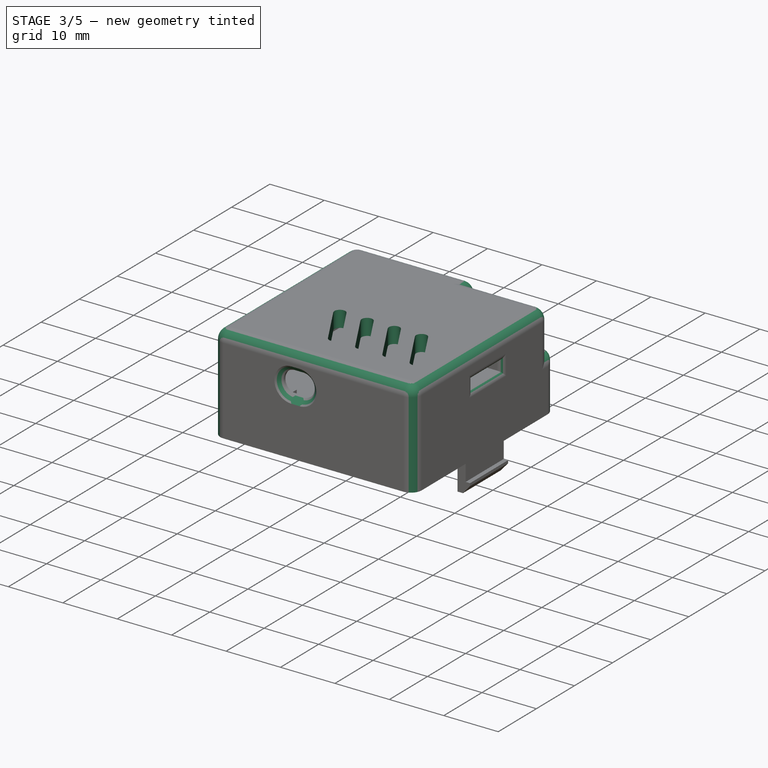
[diagram: stage 3 of 5 — iso view after this stage's code; geometry added in this stage tinted green]
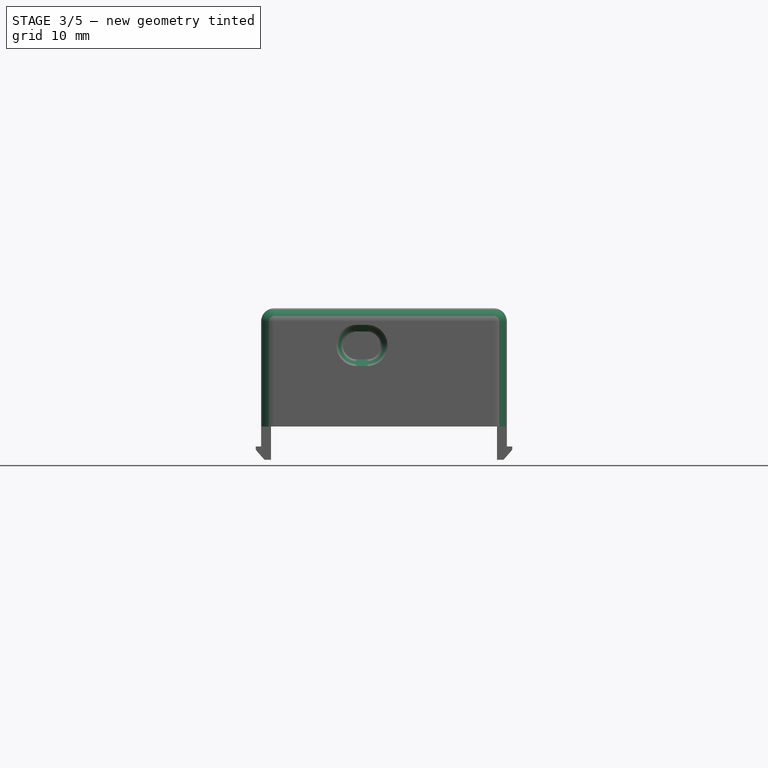
[diagram: stage 3 of 5 — front view after this stage's code; geometry added in this stage tinted green]
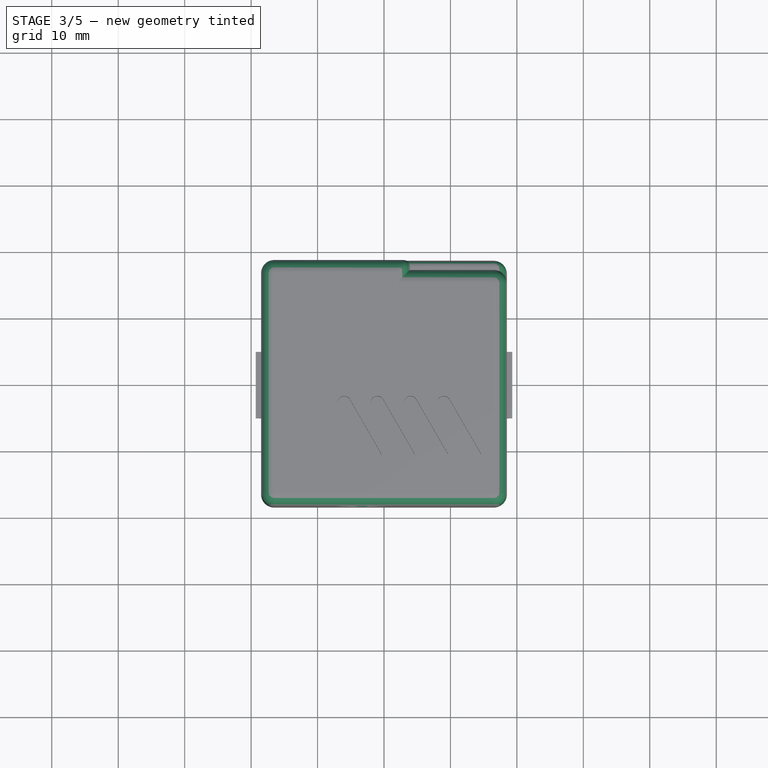
[diagram: stage 3 of 5 — top view after this stage's code; geometry added in this stage tinted green]
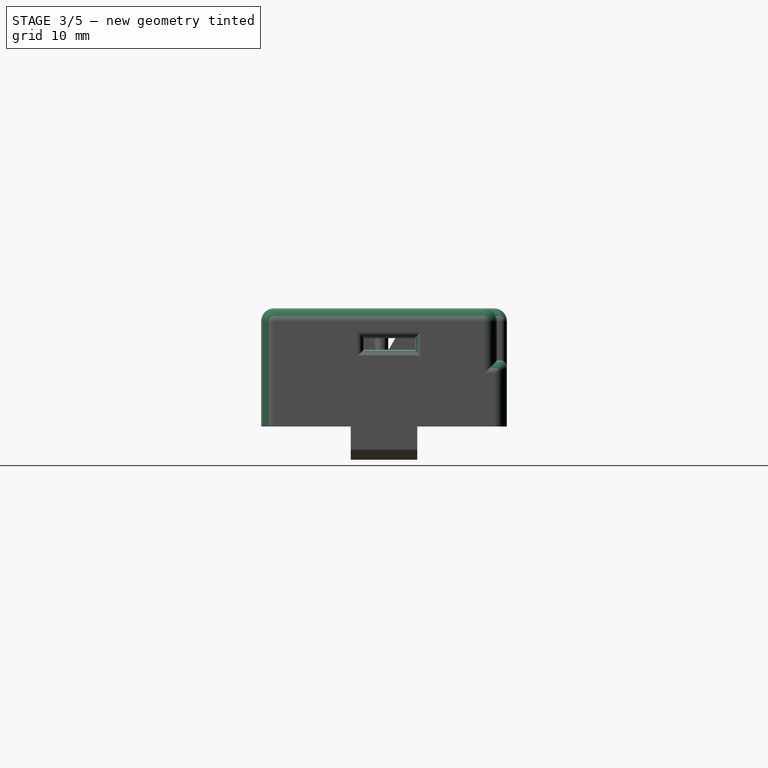
[diagram: stage 3 of 5 — right view after this stage's code; geometry added in this stage tinted green]
FEATURE [Sketcher::SketchObject] Sketch019
  ArcFitTolerance = 0
  AttachmentSupport = -> [Pocket013]
  FullyConstrained = true
  MakeInternals = false
  MapMode = 5
  Placement = pos=(0,0,17.8) rot=(0,0,1;0rad)
  sketch-geometry (16):
    g0: ArcOfCircle CenterX=-6 CenterY=-3 CenterZ=0 NormalX=0 NormalY=0 NormalZ=1 AngleXU=0 Radius=1 StartAngle=0.523599 EndAngle=3.66519
    g1: ArcOfCircle CenterX=-1.3812 CenterY=-11 CenterZ=0 NormalX=0 NormalY=0 NormalZ=1 AngleXU=0 Radius=1 StartAngle=3.66519 EndAngle=6.80678
    g2: LineSegment StartX=-6.86603 StartY=-3.5 StartZ=0 EndX=-2.24722 EndY=-11.5 EndZ=0
    g3: LineSegment StartX=-0.515172 StartY=-10.5 StartZ=0 EndX=-5.13397 EndY=-2.5 EndZ=0
    g4: ArcOfCircle CenterX=-1 CenterY=-3 CenterZ=0 NormalX=0 NormalY=0 NormalZ=1 AngleXU=0 Radius=1 StartAngle=0.523599 EndAngle=3.66519
    g5: ArcOfCircle CenterX=3.6188 CenterY=-11 CenterZ=0 NormalX=0 NormalY=0 NormalZ=1 AngleXU=0 Radius=1 StartAngle=3.66519 EndAngle=6.80678
    g6: LineSegment StartX=-1.86603 StartY=-3.5 StartZ=0 EndX=2.75278 EndY=-11.5 EndZ=0
    g7: LineSegment StartX=4.48483 StartY=-10.5 StartZ=0 EndX=-0.133975 EndY=-2.5 EndZ=0
    g8: ArcOfCircle CenterX=4 CenterY=-3 CenterZ=0 NormalX=0 NormalY=0 NormalZ=1 AngleXU=0 Radius=1 StartAngle=0.523599 EndAngle=3.66519
    g9: ArcOfCircle CenterX=8.6188 CenterY=-11 CenterZ=0 NormalX=0 NormalY=0 NormalZ=1 AngleXU=0 Radius=1 StartAngle=3.66519 EndAngle=6.80678
    g10: LineSegment StartX=3.13397 StartY=-3.5 StartZ=0 EndX=7.75278 EndY=-11.5 EndZ=0
    g11: LineSegment StartX=9.48483 StartY=-10.5 StartZ=0 EndX=4.86603 EndY=-2.5 EndZ=0
    g12: ArcOfCircle CenterX=9 CenterY=-3 CenterZ=0 NormalX=0 NormalY=0 NormalZ=1 AngleXU=0 Radius=1 StartAngle=0.523599 EndAngle=3.66519
    g13: ArcOfCircle CenterX=13.6188 CenterY=-11 CenterZ=0 NormalX=0 NormalY=0 NormalZ=1 AngleXU=0 Radius=1 StartAngle=3.66519 EndAngle=6.80678
    g14: LineSegment StartX=8.13397 StartY=-3.5 StartZ=0 EndX=12.7528 EndY=-11.5 EndZ=0
    g15: LineSegment StartX=14.4848 StartY=-10.5 StartZ=0 EndX=9.86603 EndY=-2.5 EndZ=0
  constraints (40):
    c: Tangent(g0,g2) = -1.5708
    c: Tangent(g2,g1) = -1.5708
    c: Tangent(g1,g3) = -1.5708
    c: Tangent(g3,g0) = -1.5708
    c: Equal(g0,g1)
    c: Radius(g0) = 1
    c: Angle(g2,g-1) = 1.0472
    c: DistanceY(g2,g2) = 8
    c: DistanceY(g0,g-1) = 3
    c: DistanceX(g0,g-1) = 6
    c: Tangent(g4,g6) = -1.5708
    c: Tangent(g6,g5) = -1.5708
    c: Tangent(g5,g7) = -1.5708
    c: Tangent(g7,g4) = -1.5708
    c: Equal(g4,g5)
    c: Parallel(g2,g6)
    c: DistanceX(g0,g4) = 5
    c: Radius(g4) = 1
    c: DistanceY(g5,g4) = 8
    c: DistanceY(g4,g-1) = 3
    c: Tangent(g8,g10) = -1.5708
    c: Tangent(g10,g9) = -1.5708
    c: Tangent(g9,g11) = -1.5708
    c: Tangent(g11,g8) = -1.5708
    c: Equal(g8,g9)
    c: Radius(g8) = 1
    c: Parallel(g10,g6)
    c: DistanceX(g4,g8) = 5
    c: DistanceY(g8,g-1) = 3
    c: DistanceY(g9,g8) = 8
    c: Tangent(g12,g14) = -1.5708
    c: Tangent(g14,g13) = -1.5708
    c: Tangent(g13,g15) = -1.5708
    c: Tangent(g15,g12) = -1.5708
    c: Equal(g12,g13)
    c: Radius(g12) = 1
    c: DistanceX(g8,g12) = 5
    c: Parallel(g14,g10)
    c: DistanceY(g12,g-1) = 3
    c: DistanceY(g13,g12) = 8
FEATURE [PartDesign::Pocket] Pocket011
  BaseFeature = -> Pocket013
  Direction = (0,0,-1)
  Length = 3
  Length2 = 5
  Profile = -> Sketch019
  ReferenceAxis = -> Sketch019 [N_Axis]
  Refine = true
  Suppressed = false
  Type = 0
  expr: Length = <<Spreadsheet>>.MinWallThick
FEATURE [Sketcher::SketchObject] Sketch020
  ArcFitTolerance = 0
  AttachmentSupport = -> [Pocket011]
  FullyConstrained = true
  MakeInternals = false
  MapMode = 5
  Placement = pos=(-18.5,0,0) rot=(0.57735,-0.57735,-0.57735;2.0944rad)
  expr: Constraints[7] = <<Spreadsheet>>.BattThick + <<Spreadsheet>>.PCBThick
  sketch-geometry (10):
    g0: LineSegment StartX=-2.4641 StartY=14.6 StartZ=0 EndX=1 EndY=14.6 EndZ=0
    g1: LineSegment StartX=1 StartY=14.6 StartZ=0 EndX=-0.732051 EndY=11.6 EndZ=0
    g2: LineSegment StartX=-0.732051 StartY=11.6 StartZ=0 EndX=-2.4641 EndY=14.6 EndZ=0
    g3: LineSegment StartX=-7.4641 StartY=14.6 StartZ=0 EndX=-4 EndY=14.6 EndZ=0
    g4: LineSegment StartX=-4 StartY=14.6 StartZ=0 EndX=-5.73205 EndY=11.6 EndZ=0
    g5: LineSegment StartX=-5.73205 StartY=11.6 StartZ=0 EndX=-7.4641 EndY=14.6 EndZ=0
    g6: LineSegment StartX=-12.4641 StartY=14.6 StartZ=0 EndX=-9 EndY=14.6 EndZ=0
    g7: LineSegment StartX=-9 StartY=14.6 StartZ=0 EndX=-10.7321 EndY=11.6 EndZ=0
    g8: LineSegment StartX=-10.7321 StartY=11.6 StartZ=0 EndX=-12.4641 EndY=14.6 EndZ=0
    g9: LineSegment [constr] StartX=-0.732051 StartY=11.6 StartZ=0 EndX=-20.7321 EndY=11.6 EndZ=0
  constraints (30):
    c: Horizontal(g0)
    c: Coincident(g1,g0)
    c: Coincident(g2,g1)
    c: Coincident(g2,g0)
    c: Equal(g1,g2)
    c: Angle(g1,g2) = 1.0472
    c: DistanceY(g1,g0) = 3
    c: DistanceY(g-1,g1) = 11.6
    c: DistanceX(g-1,g0) = 1
    c: Horizontal(g3)
    c: Coincident(g4,g3)
    c: Coincident(g5,g4)
    c: Coincident(g5,g3)
    c: Equal(g5,g4)
    c: DistanceY(g4,g3) = 3
    c: Horizontal(g6)
    c: Coincident(g7,g6)
    c: Coincident(g8,g7)
    c: Coincident(g8,g6)
    c: Equal(g8,g7)
    c: Angle(g4,g5) = 1.0472
    c: Angle(g7,g8) = 1.0472
    c: DistanceY(g7,g6) = 3
    c: Coincident(g9,g1)
    c: Horizontal(g9)
    c: DistanceX(g9,g9) = 20
    c: PointOnObject(g4,g9)
    c: PointOnObject(g7,g9)
    c: DistanceX(g4,g1) = 5
    c: DistanceX(g7,g4) = 5
FEATURE [PartDesign::Pocket] Pocket012
  BaseFeature = -> Pocket011
  Direction = (1,0,0)
  Length = 3.5
  Length2 = 5
  Profile = -> Sketch020
  ReferenceAxis = -> Sketch020 [N_Axis]
  Refine = true
  Suppressed = false
  Type = 0
  expr: Length = (<<Spreadsheet>>.CaseWidth - <<Spreadsheet>>.PCBWidth) / 2
FEATURE [PartDesign::Fillet] Fillet006
  Base = -> Pocket012 [Edge59,Edge55,Edge5,Edge44,Edge43,Edge42,Edge2,Edge6,Edge57,Edge76,Edge58,Edge45]
  BaseFeature = -> Pocket012
  Radius = 2
  Refine = true
  SupportTransform = false
  Suppressed = false
  UseAllEdges = false
FEATURE [PartDesign::Chamfer] Chamfer
  Angle = 45
  Base = -> Fillet006 [Edge110]
  BaseFeature = -> Fillet006
  ChamferType = 0
  FlipDirection = false
  Refine = true
  Size = 1
  Size2 = 1
  SupportTransform = false
  Suppressed = false
  UseAllEdges = false
FEATURE [PartDesign::Fillet] Fillet007
  Base = -> Chamfer [Edge74,Edge75,Edge312,Edge311,Edge310,Edge313,Edge217,Edge79]
  BaseFeature = -> Chamfer
  Radius = 1
  Refine = true
  SupportTransform = false
  Suppressed = false
  UseAllEdges = false
FEATURE [PartDesign::Fillet] Fillet008
  Base = -> Fillet007 [Edge68,Edge67,Edge70,Edge69]
  BaseFeature = -> Fillet007
  Radius = 1
  SupportTransform = false
  Suppressed = false
  UseAllEdges = false
FEATURE [PartDesign::Body] Body  label="Cover"
  AllowCompound = false
  Group = -> [Sketch,Pad,Sketch001,Pocket,Sketch002,Pad001,Sketch003,Pocket001,Sketch004,Pocket002,Sketch005,Pocket003,Sketch006,Pocket004,Sketch011,Pocket007,Sketch012,Pocket008,Sketch013,Pocket009,Sketch015,Pad005,Sketch021,Sketch022,Pocket014,Pocket013,Pocket011,Pocket012,Sketch019,Sketch020,Fillet006,Chamfer,Fillet007,Fillet008]
  Origin = -> Origin
  Tip = -> Fillet008
FEATURE [App::DocumentObjectGroup] Group  label="Switch-Array"
  Group = -> [Fusion]
FEATURE [App::DocumentObjectGroup] Group001  label="Case"
  Group = -> [Body,Body001,Body003]
FEATURE [App::DocumentObjectGroup] Group002  label="Ref"
  Group = -> [SlimeVR_Tracker,Body002]
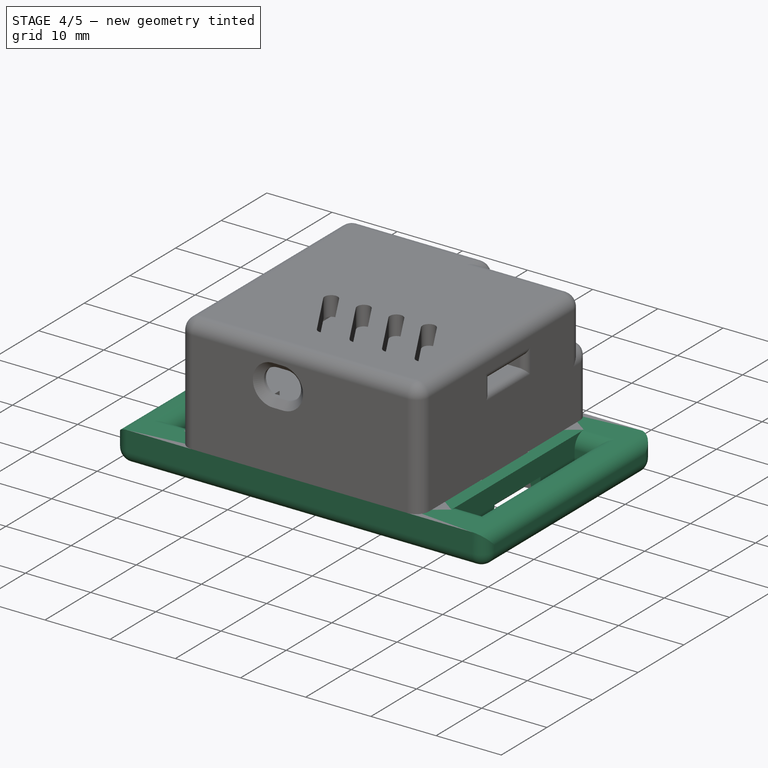
[diagram: stage 4 of 5 — iso view after this stage's code; geometry added in this stage tinted green]
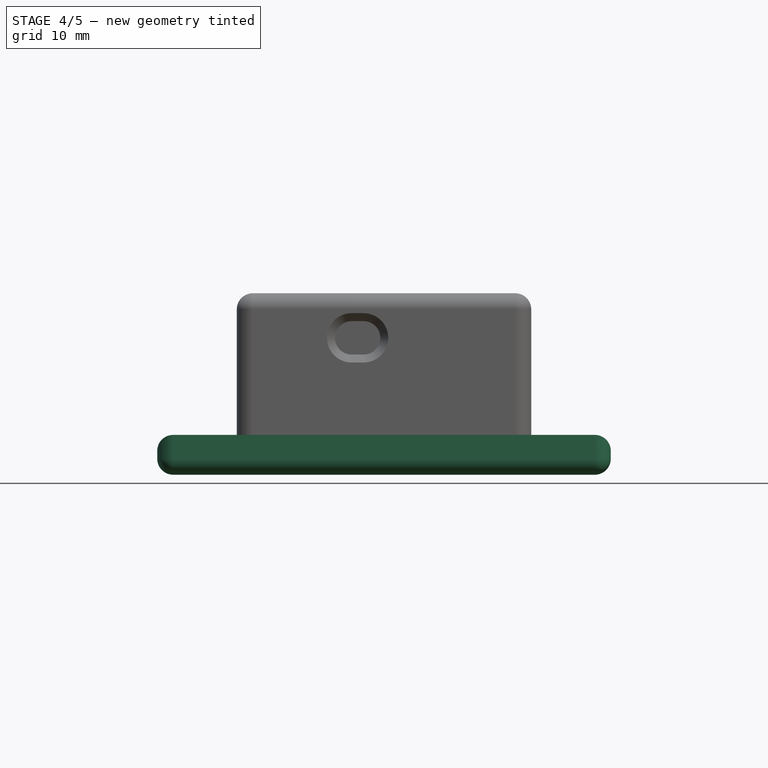
[diagram: stage 4 of 5 — front view after this stage's code; geometry added in this stage tinted green]
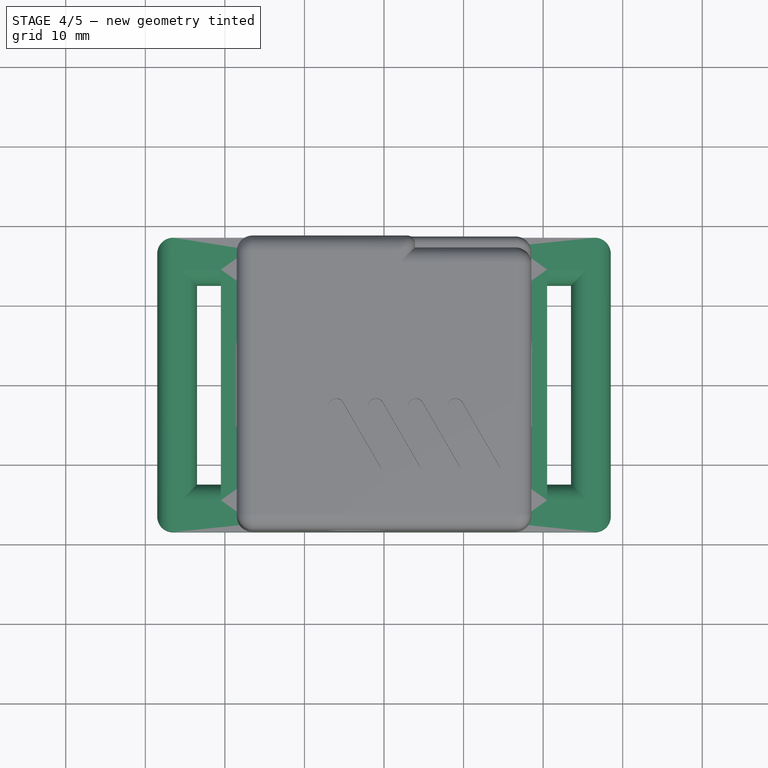
[diagram: stage 4 of 5 — top view after this stage's code; geometry added in this stage tinted green]
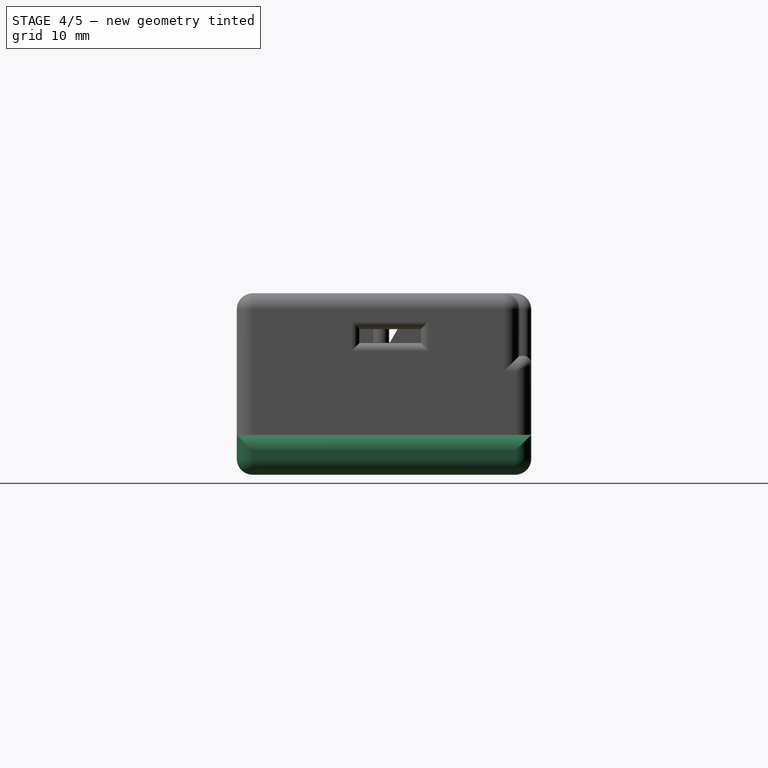
[diagram: stage 4 of 5 — right view after this stage's code; geometry added in this stage tinted green]
FEATURE [Sketcher::SketchObject] Sketch016
  ArcFitTolerance = 0
  AttachmentSupport = -> [XY_Plane003]
  FullyConstrained = true
  MakeInternals = false
  MapMode = 5
  expr: Constraints[18] = <<Spreadsheet>>.SnapFitWidth + <<Spreadsheet>>.Tol
  expr: Constraints[20] = <<Spreadsheet>>.CaseWidth / 2 - <<Spreadsheet>>.SnapFitCantileverThick - <<Spreadsheet>>.SnapFitNotchWidth - <<Spreadsheet>>.SnapFitHoleExtraWidth - <<Spreadsheet>>.Tol
  expr: Constraints[21] = <<Spreadsheet>>.CaseWidth / 2 + <<Spreadsheet>>.Tol
  expr: Constraints[29] = <<Spreadsheet>>.SnapFitWidth + <<Spreadsheet>>.Tol
  expr: Constraints[31] = <<Spreadsheet>>.CaseWidth / 2 - <<Spreadsheet>>.SnapFitCantileverThick - <<Spreadsheet>>.SnapFitNotchWidth - <<Spreadsheet>>.SnapFitHoleExtraWidth - <<Spreadsheet>>.Tol
  expr: Constraints[32] = <<Spreadsheet>>.CaseWidth / 2 + <<Spreadsheet>>.Tol
  expr: Constraints[8] = <<Spreadsheet>>.CaseWidth + 2 * Spreadsheet.BaseMargin
  expr: Constraints[9] = <<Spreadsheet>>.CaseWidth
  sketch-geometry (12):
    g0: LineSegment StartX=-20.5 StartY=18.5 StartZ=0 EndX=20.5 EndY=18.5 EndZ=0
    g1: LineSegment StartX=20.5 StartY=18.5 StartZ=0 EndX=20.5 EndY=-18.5 EndZ=0
    g2: LineSegment StartX=20.5 StartY=-18.5 StartZ=0 EndX=-20.5 EndY=-18.5 EndZ=0
    g3: LineSegment StartX=-20.5 StartY=-18.5 StartZ=0 EndX=-20.5 EndY=18.5 EndZ=0
    g4: LineSegment StartX=-18.6 StartY=5.05 StartZ=0 EndX=-15.9 EndY=5.05 EndZ=0
    g5: LineSegment StartX=-15.9 StartY=5.05 StartZ=0 EndX=-15.9 EndY=-5.05 EndZ=0
    g6: LineSegment StartX=-15.9 StartY=-5.05 StartZ=0 EndX=-18.6 EndY=-5.05 EndZ=0
    g7: LineSegment StartX=-18.6 StartY=-5.05 StartZ=0 EndX=-18.6 EndY=5.05 EndZ=0
    g8: LineSegment StartX=15.9 StartY=5.05 StartZ=0 EndX=18.6 EndY=5.05 EndZ=0
    g9: LineSegment StartX=18.6 StartY=5.05 StartZ=0 EndX=18.6 EndY=-5.05 EndZ=0
    g10: LineSegment StartX=18.6 StartY=-5.05 StartZ=0 EndX=15.9 EndY=-5.05 EndZ=0
    g11: LineSegment StartX=15.9 StartY=-5.05 StartZ=0 EndX=15.9 EndY=5.05 EndZ=0
  constraints (33):
    c: Coincident(g0,g1)
    c: Coincident(g1,g2)
    c: Coincident(g2,g3)
    c: Coincident(g3,g0)
    c: Horizontal(g0)
    c: Horizontal(g2)
    c: Vertical(g1)
    c: Vertical(g3)
    c: DistanceX(g0,g0) = 41
    c: DistanceY(g3,g3) = 37
    c: Symmetric(g0,g1,g-1)
    c: Coincident(g4,g5)
    c: Coincident(g5,g6)
    c: Coincident(g6,g7)
    c: Coincident(g7,g4)
    c: Horizontal(g4)
    c: Horizontal(g6)
    c: Vertical(g7)
    c: DistanceY(g7,g7) = 10.1
    c: Symmetric(g4,g5,g-1)
    c: DistanceX(g4,g-1) = 15.9
    c: DistanceX(g4,g-1) = 18.6
    c: Coincident(g8,g9)
    c: Coincident(g9,g10)
    c: Coincident(g10,g11)
    c: Coincident(g11,g8)
    c: Horizontal(g8)
    c: Horizontal(g10)
    c: Vertical(g11)
    c: DistanceY(g9,g9) = 10.1
    c: Symmetric(g8,g9,g-1)
    c: DistanceX(g-1,g8) = 15.9
    c: DistanceX(g-1,g8) = 18.6
FEATURE [PartDesign::Pad] Pad006
  Direction = (0,0,1)
  Length = 5
  Length2 = 10
  Profile = -> Sketch016
  ReferenceAxis = -> Sketch016 [N_Axis]
  Refine = true
  Reversed = true
  Suppressed = false
  Type = 0
  expr: Length = <<Spreadsheet>>.BracketThick
FEATURE [Sketcher::SketchObject] Sketch017
  ArcFitTolerance = 0
  AttachmentSupport = -> [Pad006]
  FullyConstrained = true
  MakeInternals = false
  MapMode = 5
  Placement = pos=(0,0,-5) rot=(1,0,0;3.14159rad)
  expr: Constraints[10] = <<Spreadsheet>>.BaseMargin - <<Spreadsheet>>.Tol
  expr: Constraints[18] = <<Spreadsheet>>.SnapFitWidth + <<Spreadsheet>>.Tol
  expr: Constraints[20] = <<Spreadsheet>>.CaseWidth / 2 + <<Spreadsheet>>.Tol
  expr: Constraints[21] = <<Spreadsheet>>.BaseMargin - <<Spreadsheet>>.Tol
  expr: Constraints[7] = <<Spreadsheet>>.SnapFitWidth + <<Spreadsheet>>.Tol
  expr: Constraints[9] = <<Spreadsheet>>.CaseWidth / 2 + <<Spreadsheet>>.Tol
  sketch-geometry (8):
    g0: LineSegment StartX=-20.5 StartY=5.05 StartZ=0 EndX=-18.6 EndY=5.05 EndZ=0
    g1: LineSegment StartX=-18.6 StartY=5.05 StartZ=0 EndX=-18.6 EndY=-5.05 EndZ=0
    g2: LineSegment StartX=-18.6 StartY=-5.05 StartZ=0 EndX=-20.5 EndY=-5.05 EndZ=0
    g3: LineSegment StartX=-20.5 StartY=-5.05 StartZ=0 EndX=-20.5 EndY=5.05 EndZ=0
    g4: LineSegment StartX=18.6 StartY=5.05 StartZ=0 EndX=20.5 EndY=5.05 EndZ=0
    g5: LineSegment StartX=20.5 StartY=5.05 StartZ=0 EndX=20.5 EndY=-5.05 EndZ=0
    g6: LineSegment StartX=20.5 StartY=-5.05 StartZ=0 EndX=18.6 EndY=-5.05 EndZ=0
    g7: LineSegment StartX=18.6 StartY=-5.05 StartZ=0 EndX=18.6 EndY=5.05 EndZ=0
  constraints (22):
    c: Coincident(g0,g1)
    c: Coincident(g1,g2)
    c: Coincident(g2,g3)
    c: Coincident(g3,g0)
    c: Horizontal(g0)
    c: Horizontal(g2)
    c: Vertical(g1)
    c: DistanceY(g3,g3) = 10.1
    c: Symmetric(g0,g2,g-1)
    c: DistanceX(g0,g-1) = 18.6
    c: DistanceX(g0,g0) = 1.9
    c: Coincident(g4,g5)
    c: Coincident(g5,g6)
    c: Coincident(g6,g7)
    c: Coincident(g7,g4)
    c: Horizontal(g4)
    c: Horizontal(g6)
    c: Vertical(g7)
    c: DistanceY(g5,g5) = 10.1
    c: Symmetric(g4,g5,g-1)
    c: DistanceX(g-1,g4) = 18.6
    c: DistanceX(g4,g4) = 1.9
FEATURE [PartDesign::Pocket] Pocket010
  BaseFeature = -> Pad006
  Direction = (0,0,1)
  Length = 2.1
  Length2 = 5
  Profile = -> Sketch017
  ReferenceAxis = -> Sketch017 [N_Axis]
  Refine = true
  Suppressed = false
  Type = 0
  expr: Length = Spreadsheet.SnapFitNotchHeight + <<Spreadsheet>>.Tol
FEATURE [Sketcher::SketchObject] Sketch023
  ArcFitTolerance = 0
  AttachmentSupport = -> [Pocket010]
  FullyConstrained = true
  MakeInternals = false
  MapMode = 5
  expr: Constraints[23] = <<Spreadsheet>>.MinWallThick / 2
  expr: Constraints[24] = <<Spreadsheet>>.MinWallThick / 2
  expr: Constraints[26] = <<Spreadsheet>>.LugLen
  expr: Constraints[27] = <<Spreadsheet>>.LugLen
  expr: Constraints[64] = <<Spreadsheet>>.MinWallThick / 2
  expr: Constraints[65] = <<Spreadsheet>>.MinWallThick / 2
  expr: Constraints[67] = <<Spreadsheet>>.LugLen
  expr: Constraints[68] = <<Spreadsheet>>.LugLen
  expr: Constraints[69] = <<Spreadsheet>>.MinWallThick / 2
  expr: Constraints[70] = <<Spreadsheet>>.MinWallThick / 2
  expr: Constraints[72] = <<Spreadsheet>>.LugLen
  expr: Constraints[73] = <<Spreadsheet>>.LugLen
  expr: Constraints[74] = <<Spreadsheet>>.MinWallThick / 2
  expr: Constraints[75] = <<Spreadsheet>>.MinWallThick / 2
  expr: Constraints[77] = <<Spreadsheet>>.LugLen
  expr: Constraints[78] = <<Spreadsheet>>.LugLen
  expr: Constraints[8] = <<Spreadsheet>>.CaseWidth - 2 * <<Spreadsheet>>.MinWallThick
  expr: Constraints[9] = <<Spreadsheet>>.CaseWidth - 2 * <<Spreadsheet>>.MinWallThick
  sketch-geometry (28):
    g0: LineSegment [constr] StartX=-15.5 StartY=15.5 StartZ=0 EndX=15.5 EndY=15.5 EndZ=0
    g1: LineSegment [constr] StartX=15.5 StartY=15.5 StartZ=0 EndX=15.5 EndY=-15.5 EndZ=0
    g2: LineSegment [constr] StartX=15.5 StartY=-15.5 StartZ=0 EndX=-15.5 EndY=-15.5 EndZ=0
    g3: LineSegment [constr] StartX=-15.5 StartY=-15.5 StartZ=0 EndX=-15.5 EndY=15.5 EndZ=0
    g4: LineSegment StartX=-17 StartY=17 StartZ=0 EndX=-12 EndY=17 EndZ=0
    g5: LineSegment StartX=-12 StartY=17 StartZ=0 EndX=-12 EndY=15.5 EndZ=0
    g6: LineSegment StartX=-12 StartY=15.5 StartZ=0 EndX=-15.5 EndY=15.5 EndZ=0
    g7: LineSegment StartX=-15.5 StartY=15.5 StartZ=0 EndX=-15.5 EndY=12 EndZ=0
    g8: LineSegment StartX=-15.5 StartY=12 StartZ=0 EndX=-17 EndY=12 EndZ=0
    g9: LineSegment StartX=-17 StartY=12 StartZ=0 EndX=-17 EndY=17 EndZ=0
    g10: LineSegment StartX=17 StartY=17 StartZ=0 EndX=12 EndY=17 EndZ=0
    g11: LineSegment StartX=12 StartY=17 StartZ=0 EndX=12 EndY=15.5 EndZ=0
    g12: LineSegment StartX=12 StartY=15.5 StartZ=0 EndX=15.5 EndY=15.5 EndZ=0
    g13: LineSegment StartX=15.5 StartY=15.5 StartZ=0 EndX=15.5 EndY=12 EndZ=0
    g14: LineSegment StartX=15.5 StartY=12 StartZ=0 EndX=17 EndY=12 EndZ=0
    g15: LineSegment StartX=17 StartY=12 StartZ=0 EndX=17 EndY=17 EndZ=0
    g16: LineSegment StartX=-17 StartY=-17 StartZ=0 EndX=-12 EndY=-17 EndZ=0
    g17: LineSegment StartX=-12 StartY=-17 StartZ=0 EndX=-12 EndY=-15.5 EndZ=0
    g18: LineSegment StartX=-12 StartY=-15.5 StartZ=0 EndX=-15.5 EndY=-15.5 EndZ=0
    g19: LineSegment StartX=-15.5 StartY=-15.5 StartZ=0 EndX=-15.5 EndY=-12 EndZ=0
    g20: LineSegment StartX=-15.5 StartY=-12 StartZ=0 EndX=-17 EndY=-12 EndZ=0
    g21: LineSegment StartX=-17 StartY=-12 StartZ=0 EndX=-17 EndY=-17 EndZ=0
    g22: LineSegment StartX=17 StartY=-17 StartZ=0 EndX=12 EndY=-17 EndZ=0
    g23: LineSegment StartX=12 StartY=-17 StartZ=0 EndX=12 EndY=-15.5 EndZ=0
    g24: LineSegment StartX=12 StartY=-15.5 StartZ=0 EndX=15.5 EndY=-15.5 EndZ=0
    g25: LineSegment StartX=15.5 StartY=-15.5 StartZ=0 EndX=15.5 EndY=-12 EndZ=0
    g26: LineSegment StartX=15.5 StartY=-12 StartZ=0 EndX=17 EndY=-12 EndZ=0
    g27: LineSegment StartX=17 StartY=-12 StartZ=0 EndX=17 EndY=-17 EndZ=0
  constraints (79):
    c: Coincident(g0,g1)
    c: Coincident(g1,g2)
    c: Coincident(g2,g3)
    c: Coincident(g3,g0)
    c: Horizontal(g0)
    c: Horizontal(g2)
    c: Vertical(g1)
    c: Vertical(g3)
    c: DistanceX(g0,g0) = 31
    c: DistanceY(g3,g3) = 31
    c: Symmetric(g0,g1,g-1)
    c: Coincident(g4,g5)
    c: Coincident(g5,g6)
    c: Horizontal(g4)
    c: Horizontal(g6)
    c: Vertical(g5)
    c: Coincident(g7,g8)
    c: Coincident(g8,g9)
    c: Horizontal(g8)
    c: Vertical(g7)
    c: Vertical(g9)
    c: Coincident(g7,g6)
    c: Coincident(g9,g4)
    c: DistanceY(g5,g5) = 1.5
    c: DistanceX(g8,g8) = 1.5
    c: Coincident(g6,g0)
    c: DistanceX(g4,g4) = 5
    c: DistanceY(g9,g9) = 5
    c: Coincident(g10,g11)
    c: Coincident(g11,g12)
    c: Horizontal(g10)
    c: Horizontal(g12)
    c: Vertical(g11)
    c: Coincident(g13,g14)
    c: Coincident(g14,g15)
    c: Horizontal(g14)
    c: Vertical(g13)
    c: Vertical(g15)
    c: Coincident(g13,g12)
    c: Coincident(g15,g10)
    c: Coincident(g16,g17)
    c: Coincident(g17,g18)
    c: Horizontal(g16)
    c: Horizontal(g18)
    c: Vertical(g17)
    c: Coincident(g19,g20)
    c: Coincident(g20,g21)
    c: Horizontal(g20)
    c: Vertical(g19)
    c: Vertical(g21)
    c: Coincident(g19,g18)
    c: Coincident(g21,g16)
    c: Coincident(g22,g23)
    c: Coincident(g23,g24)
    c: Horizontal(g22)
    c: Horizontal(g24)
    c: Vertical(g23)
    c: Coincident(g25,g26)
    c: Coincident(g26,g27)
    c: Horizontal(g26)
    c: Vertical(g25)
    c: Vertical(g27)
    c: Coincident(g25,g24)
    c: Coincident(g27,g22)
    c: DistanceY(g11,g11) = 1.5
    c: DistanceX(g14,g14) = 1.5
    c: Coincident(g12,g0)
    c: DistanceX(g10,g10) = 5
    c: DistanceY(g15,g15) = 5
    c: DistanceX(g20,g20) = 1.5
    c: DistanceY(g17,g17) = 1.5
    c: Coincident(g18,g2)
    c: DistanceY(g21,g21) = 5
    c: DistanceX(g16,g16) = 5
    c: DistanceX(g26,g26) = 1.5
    c: DistanceY(g23,g23) = 1.5
    c: Coincident(g1,g24)
    c: DistanceY(g27,g27) = 5
    c: DistanceX(g22,g22) = 5
FEATURE [PartDesign::Pad] Pad008
  BaseFeature = -> Pocket010
  Direction = (0,0,1)
  Length = 2
  Length2 = 10
  Profile = -> Sketch023
  ReferenceAxis = -> Sketch023 [N_Axis]
  Refine = true
  Suppressed = false
  Type = 0
  expr: Length = <<Spreadsheet>>.LugDepth
FEATURE [PartDesign::Pad] Pad007
  BaseFeature = -> Pad008
  Direction = (0,0,1)
  Length = 5
  Length2 = 10
  Profile = -> Sketch018
  ReferenceAxis = -> Sketch018 [N_Axis]
  Refine = true
  Reversed = true
  Suppressed = false
  Type = 0
  expr: Length = <<Spreadsheet>>.BracketThick
FEATURE [PartDesign::Fillet] Fillet
  Base = -> Pad007 [Edge6,Edge9,Edge8,Edge10,Edge2,Edge3,Edge1,Edge4,Edge94,Edge18,Edge14,Edge72,Edge144,Edge5]
  BaseFeature = -> Pad007
  Radius = 2
  Refine = true
  SupportTransform = false
  Suppressed = false
  UseAllEdges = false
FEATURE [PartDesign::Fillet] Fillet004
  Base = -> Fillet [Edge86,Edge81,Edge71,Edge76]
  BaseFeature = -> Fillet
  Radius = 2
  Refine = true
  SupportTransform = false
  Suppressed = false
  UseAllEdges = false
FEATURE [App::Link] Link  label="SW-link"
  LinkPlacement = pos=(-20,-50,0) rot=(0.57735,-0.57735,0.57735;4.18879rad)
  LinkedObject = -> Body001
  Placement = pos=(-20,-50,0) rot=(0.57735,-0.57735,0.57735;4.18879rad)
FEATURE [PartDesign::Fillet] Fillet005
  Base = -> Fillet004 [Edge22,Edge27,Edge6,Edge95,Edge82,Edge40,Edge53,Edge11]
  BaseFeature = -> Fillet004
  Radius = 2
  Refine = true
  SupportTransform = false
  Suppressed = false
  UseAllEdges = false
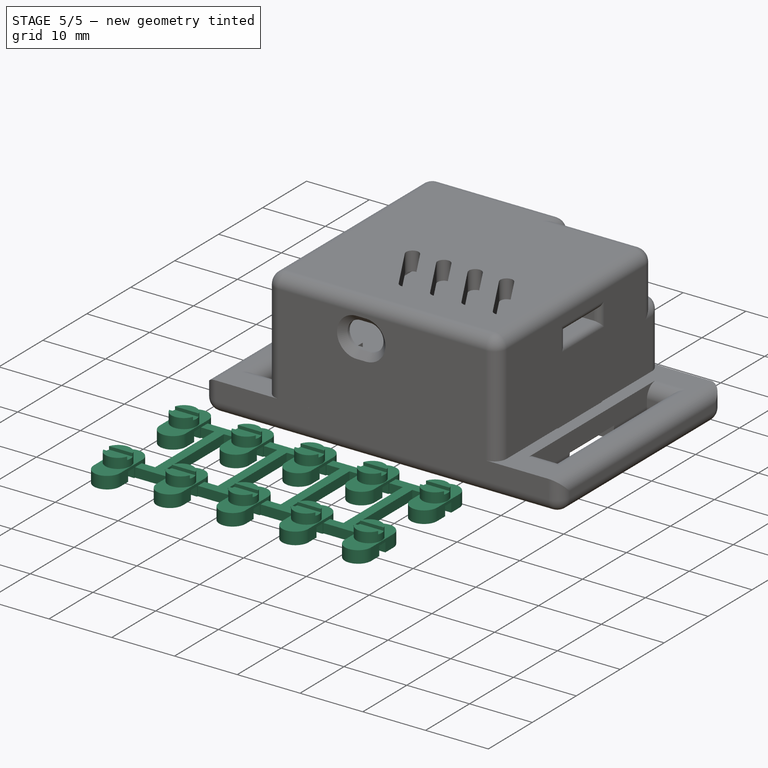
[diagram: stage 5 of 5 — iso view after this stage's code; geometry added in this stage tinted green]
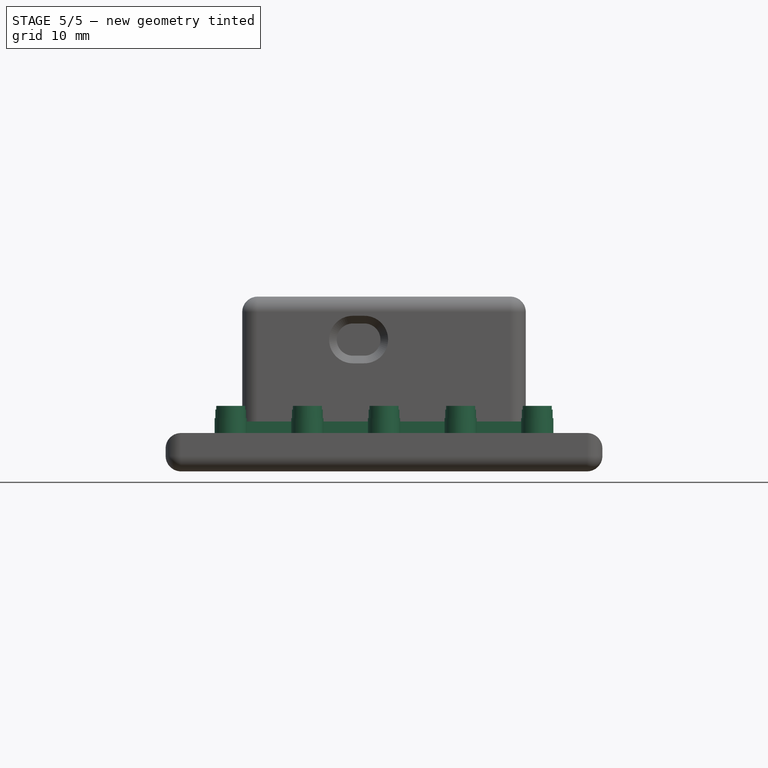
[diagram: stage 5 of 5 — front view after this stage's code; geometry added in this stage tinted green]
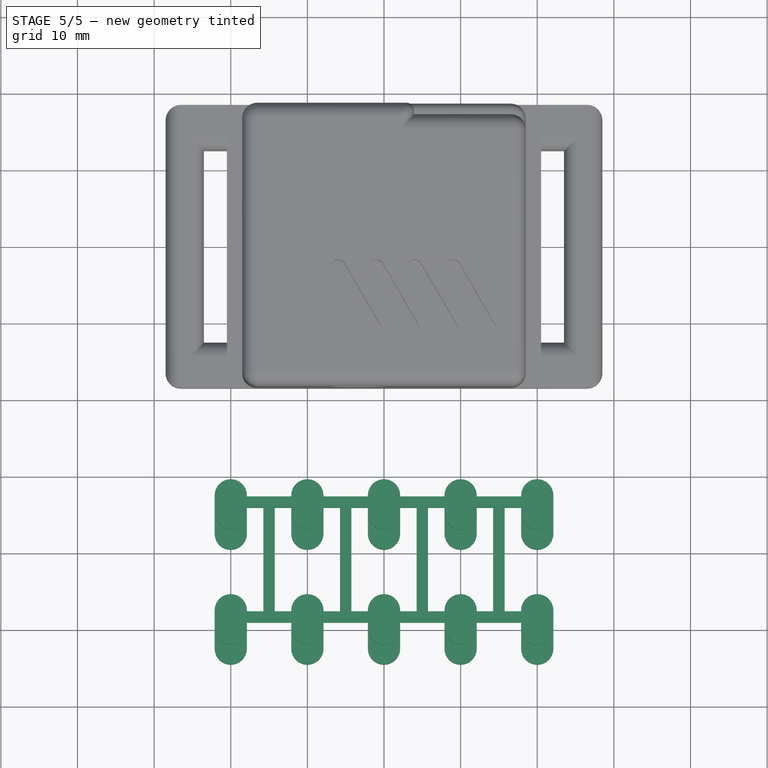
[diagram: stage 5 of 5 — top view after this stage's code; geometry added in this stage tinted green]
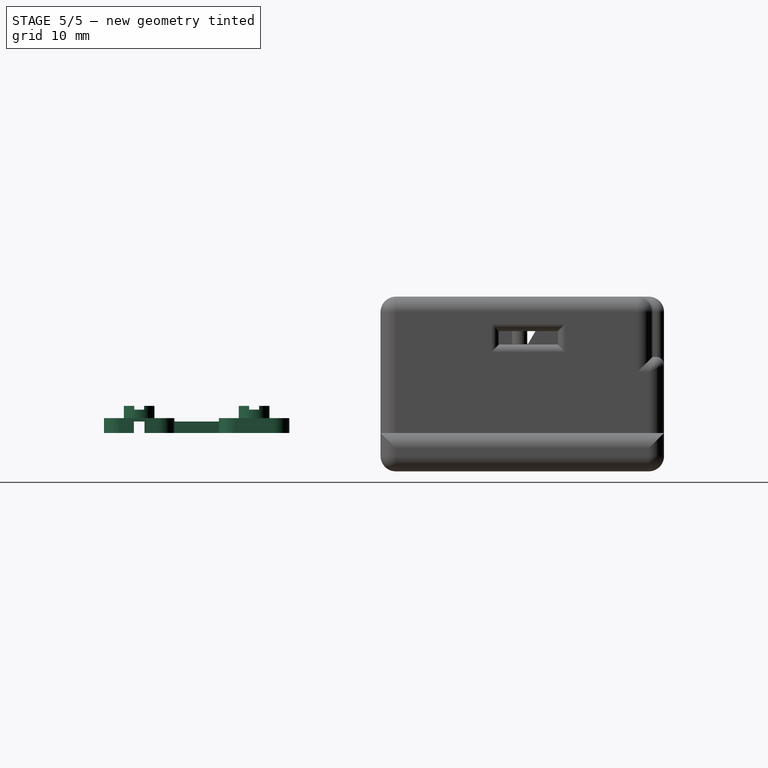
[diagram: stage 5 of 5 — right view after this stage's code; geometry added in this stage tinted green]
FEATURE [Sketcher::SketchObject] Sketch007
  ArcFitTolerance = 0
  AttachmentSupport = -> [XZ_Plane001]
  FullyConstrained = true
  MakeInternals = false
  MapMode = 5
  Placement = pos=(0,0,0) rot=(1,0,0;1.5708rad)
  expr: Constraints[15] = <<Spreadsheet>>.SWNDia / 2 + <<Spreadsheet>>.Tol
  expr: Constraints[16] = 2 * <<Spreadsheet>>.SWPStride + <<Spreadsheet>>.SWNExt * 2
  expr: Constraints[18] = <<Spreadsheet>>.SWPStride + <<Spreadsheet>>.SWNExt
  expr: Constraints[5] = <<Spreadsheet>>.PCBWidth
  expr: Constraints[6] = <<Spreadsheet>>.PCBThick
  expr: Constraints[8] = <<Spreadsheet>>.CaseHeight - 2 * <<Spreadsheet>>.MinWallThick - <<Spreadsheet>>.MaxCompHeight
  sketch-geometry (7):
    g0: LineSegment [constr] StartX=-15 StartY=11.6 StartZ=0 EndX=15 EndY=11.6 EndZ=0
    g1: LineSegment [constr] StartX=15 StartY=11.6 StartZ=0 EndX=15 EndY=10 EndZ=0
    g2: LineSegment [constr] StartX=-15 StartY=10 StartZ=0 EndX=-15 EndY=11.6 EndZ=0
    g3: ArcOfCircle CenterX=-2.5 CenterY=0 CenterZ=0 NormalX=0 NormalY=0 NormalZ=1 AngleXU=0 Radius=2.1 StartAngle=1.5708 EndAngle=4.71239
    g4: ArcOfCircle CenterX=2.5 CenterY=0 CenterZ=0 NormalX=0 NormalY=0 NormalZ=1 AngleXU=0 Radius=2.1 StartAngle=4.71239 EndAngle=7.85398
    g5: LineSegment StartX=-2.5 StartY=-2.1 StartZ=0 EndX=2.5 EndY=-2.1 EndZ=0
    g6: LineSegment StartX=2.5 StartY=2.1 StartZ=0 EndX=-2.5 EndY=2.1 EndZ=0
  constraints (19):
    c: Coincident(g0,g1)
    c: Coincident(g2,g0)
    c: Horizontal(g0)
    c: Vertical(g1)
    c: Vertical(g2)
    c: DistanceX(g0,g0) = 30
    c: DistanceY(g2,g2) = 1.6
    c: Symmetric(g2,g1,g-2)
    c: DistanceY(g-1,g0) = 11.6
    c: Tangent(g3,g5) = -1.5708
    c: Tangent(g5,g4) = -1.5708
    c: Tangent(g4,g6) = -1.5708
    c: Tangent(g6,g3) = -1.5708
    c: Equal(g3,g4)
    c: Horizontal(g5)
    c: Radius(g3) = 2.1
    c: DistanceX(g6,g6) = 5
    c: PointOnObject(g3,g-1)
    c: DistanceX(g3,g-1) = 2.5
FEATURE [PartDesign::Pad] Pad002
  Direction = (0,-1,2e-16)
  Length = 1.95
  Length2 = 10
  Placement = pos=(0,0,0) rot=(1,0,0;1.5708rad)
  Profile = -> Sketch007
  ReferenceAxis = -> Sketch007 [N_Axis]
  Refine = true
  Suppressed = false
  Type = 0
  expr: Length = (<<Spreadsheet>>.CaseWidth - <<Spreadsheet>>.PCBWidth - <<Spreadsheet>>.MinWallThick) / 2 - <<Spreadsheet>>.Tol / 2
FEATURE [Sketcher::SketchObject] Sketch008
  ArcFitTolerance = 0
  AttachmentSupport = -> [Pad002]
  FullyConstrained = true
  MakeInternals = false
  MapMode = 5
  Placement = pos=(0,-1.95,0) rot=(1,0,0;1.5708rad)
  expr: Constraints[5] = <<Spreadsheet>>.PCBWidth
  expr: Constraints[6] = <<Spreadsheet>>.PCBThick
  expr: Constraints[8] = <<Spreadsheet>>.CaseHeight - 2 * <<Spreadsheet>>.MinWallThick - <<Spreadsheet>>.MaxCompHeight
  expr: Constraints[9] = <<Spreadsheet>>.SWNDia
  sketch-geometry (4):
    g0: LineSegment [constr] StartX=-15 StartY=11.6 StartZ=0 EndX=15 EndY=11.6 EndZ=0
    g1: LineSegment [constr] StartX=15 StartY=11.6 StartZ=0 EndX=15 EndY=10 EndZ=0
    g2: LineSegment [constr] StartX=-15 StartY=10 StartZ=0 EndX=-15 EndY=11.6 EndZ=0
    g3: Circle CenterX=0 CenterY=0 CenterZ=0 NormalX=0 NormalY=0 NormalZ=1 AngleXU=0 Radius=2
  constraints (11):
    c: Coincident(g0,g1)
    c: Coincident(g2,g0)
    c: Horizontal(g0)
    c: Vertical(g1)
    c: Vertical(g2)
    c: DistanceX(g0,g0) = 30
    c: DistanceY(g2,g2) = 1.6
    c: Symmetric(g2,g1,g-2)
    c: DistanceY(g-1,g0) = 11.6
    c: Diameter(g3) = 4
    c: Coincident(g3,g-1)
FEATURE [PartDesign::Pad] Pad003
  BaseFeature = -> Pad002
  Direction = (0,-1,2e-16)
  Length = 1.6
  Length2 = 10
  Placement = pos=(0,0,0) rot=(1,0,0;1.5708rad)
  Profile = -> Sketch008
  ReferenceAxis = -> Sketch008 [N_Axis]
  Refine = true
  Suppressed = false
  Type = 0
  expr: Length = <<Spreadsheet>>.MinWallThick / 2 + <<Spreadsheet>>.Tol
FEATURE [Sketcher::SketchObject] Sketch009
  ArcFitTolerance = 0
  AttachmentSupport = -> [Pad003]
  FullyConstrained = true
  MakeInternals = false
  MapMode = 5
  Placement = pos=(0,0,0) rot=(-1,0,0;1.5708rad)
  expr: Constraints[10] = <<Spreadsheet>>.SWNDia + 2 * <<Spreadsheet>>.Tol
  expr: Constraints[8] = <<Spreadsheet>>.SWPWidth + <<Spreadsheet>>.Tol
  sketch-geometry (4):
    g0: LineSegment StartX=-0.7 StartY=2.1 StartZ=0 EndX=0.7 EndY=2.1 EndZ=0
    g1: LineSegment StartX=0.7 StartY=2.1 StartZ=0 EndX=0.7 EndY=-2.1 EndZ=0
    g2: LineSegment StartX=0.7 StartY=-2.1 StartZ=0 EndX=-0.7 EndY=-2.1 EndZ=0
    g3: LineSegment StartX=-0.7 StartY=-2.1 StartZ=0 EndX=-0.7 EndY=2.1 EndZ=0
  constraints (11):
    c: Coincident(g0,g1)
    c: Coincident(g1,g2)
    c: Coincident(g2,g3)
    c: Coincident(g3,g0)
    c: Horizontal(g0)
    c: Horizontal(g2)
    c: Vertical(g1)
    c: Vertical(g3)
    c: DistanceX(g0,g0) = 1.4
    c: Symmetric(g0,g1,g-1)
    c: DistanceY(g3,g3) = 4.2
FEATURE [PartDesign::Pocket] Pocket005
  BaseFeature = -> Pad003
  Direction = (0,-1,-2e-16)
  Length = 1.5
  Length2 = 5
  Placement = pos=(0,0,0) rot=(1,0,0;1.5708rad)
  Profile = -> Sketch009
  ReferenceAxis = -> Sketch009 [N_Axis]
  Refine = true
  Suppressed = false
  Type = 0
  expr: Length = <<Spreadsheet>>.SWPLen
FEATURE [Sketcher::SketchObject] Sketch010
  ArcFitTolerance = 0
  AttachmentSupport = -> [Pocket005]
  FullyConstrained = true
  MakeInternals = false
  MapMode = 5
  Placement = pos=(0,-3.55,9e-16) rot=(1,0,0;1.5708rad)
  expr: Constraints[10] = <<Spreadsheet>>.SWPWidth
  expr: Constraints[9] = <<Spreadsheet>>.SWNDia
  sketch-geometry (4):
    g0: LineSegment StartX=-0.65 StartY=2 StartZ=0 EndX=0.65 EndY=2 EndZ=0
    g1: LineSegment StartX=0.65 StartY=2 StartZ=0 EndX=0.65 EndY=-2 EndZ=0
    g2: LineSegment StartX=0.65 StartY=-2 StartZ=0 EndX=-0.65 EndY=-2 EndZ=0
    g3: LineSegment StartX=-0.65 StartY=-2 StartZ=0 EndX=-0.65 EndY=2 EndZ=0
  constraints (11):
    c: Coincident(g0,g1)
    c: Coincident(g1,g2)
    c: Coincident(g2,g3)
    c: Coincident(g3,g0)
    c: Horizontal(g0)
    c: Horizontal(g2)
    c: Vertical(g1)
    c: Vertical(g3)
    c: Symmetric(g0,g1,g-1)
    c: DistanceY(g3,g3) = 4
    c: DistanceX(g0,g0) = 1.3
FEATURE [PartDesign::Pocket] Pocket006
  BaseFeature = -> Pocket005
  Direction = (0,1,-2e-16)
  Length = 0.5
  Length2 = 5
  Placement = pos=(0,0,0) rot=(1,0,0;1.5708rad)
  Profile = -> Sketch010
  ReferenceAxis = -> Sketch010 [N_Axis]
  Refine = true
  Suppressed = false
  Type = 0
FEATURE [PartDesign::Body] Body003  label="Base"
  AllowCompound = false
  Group = -> [Sketch016,Pad006,Sketch017,Pocket010,Sketch018,Sketch023,Pad008,Pad007,Fillet,Fillet004,Fillet005]
  Origin = -> Origin003
  Tip = -> Fillet005
FEATURE [Part::FeaturePython] Array  # Draft array (typed FeaturePython)
  AlwaysSyncPlacement = false
  Angle = 360
  ArrayType = 0
  Axis = (0,0,1)
  Base = -> Link
  Center = (0,0,0)
  Count = 10
  ExpandArray = false
  Fuse = false
  IntervalAxis = (0,0,0)
  IntervalX = (10,0,0)
  IntervalY = (0,15,0)
  IntervalZ = (0,0,10)
  NumberCircles = 3
  NumberPolar = 5
  NumberX = 5
  NumberY = 2
  NumberZ = 1
  PlacementList = 10 placements: [(-20,-50,0),(-20,-35,0),(-10,-50,0),(-10,-35,0),(0,-50,0),(0,-35,0),(10,-50,0),(10,-35,0),(20,-50,0),(20,-35,0)]
  RadialDistance = 50
  ScaleList = (10) [(1,1,1),(1,1,1),(1,1,1),(1,1,1),(1,1,1),(1,1,1),(1,1,1),(1,1,1),(1,1,1),(1,1,1)]
  Symmetry = 1
  TangentialDistance = 25
FEATURE [Sketcher::SketchObject] WallTrace
  ArcFitTolerance = 1e-06
  FullyConstrained = true
  MakeInternals = false
  sketch-geometry (7):
    g0: LineSegment StartX=0 StartY=-15 StartZ=0 EndX=40 EndY=-15 EndZ=0
    g1: LineSegment StartX=0 StartY=0 StartZ=0 EndX=40 EndY=0 EndZ=0
    g2: LineSegment StartX=5 StartY=0 StartZ=0 EndX=5 EndY=-15 EndZ=0
    g3: LineSegment StartX=15 StartY=0 StartZ=0 EndX=15 EndY=-15 EndZ=0
    g4: LineSegment StartX=25 StartY=0 StartZ=0 EndX=25 EndY=-15 EndZ=0
    g5: LineSegment StartX=35 StartY=0 StartZ=0 EndX=35 EndY=-15 EndZ=0
    g6: LineSegment [constr] StartX=0 StartY=0 StartZ=0 EndX=0 EndY=-15 EndZ=0
  constraints (25):
    c: Horizontal(g0)
    c: DistanceX(g0,g0) = 40
    c: Horizontal(g1)
    c: PointOnObject(g2,g1)
    c: PointOnObject(g2,g0)
    c: Vertical(g2)
    c: PointOnObject(g3,g1)
    c: PointOnObject(g3,g0)
    c: Vertical(g3)
    c: PointOnObject(g4,g1)
    c: PointOnObject(g4,g0)
    c: Vertical(g4)
    c: PointOnObject(g5,g1)
    c: PointOnObject(g5,g0)
    c: Vertical(g5)
    c: DistanceY(g0,g1) = 15
    c: Coincident(g6,g1)
    c: Coincident(g6,g0)
    c: Vertical(g6)
    c: DistanceX(g1,g2) = 5
    c: DistanceX(g2,g3) = 10
    c: DistanceX(g3,g4) = 10
    c: DistanceX(g4,g5) = 10
    c: Coincident(g1,g-1)
    c: DistanceX(g1) = 40
FEATURE [Part::FeaturePython] Wall  # Arch/BIM 166 (typed FeaturePython)
  Align = 2
  ArchSketchData = true
  Area = 210
  Base = -> WallTrace
  BlockHeight = 0
  BlockLength = 0
  CountBroken = 0
  CountEntire = 0
  Face = 0
  Height = 1.5
  HorizontalArea = 0
  IfcData = attributes={"GlobalId": {"name": "GlobalId", "type": "IfcGloballyUniqueId", "is_enum": false, "enum_values": []}, "Description": {"... (+533 chars omitted),+1 more (map truncated)
  IfcType = 166
  Joint = 0
  Length = 140
  MakeBlocks = false
  MoveBase = false
  MoveWithHost = false
  Normal = (0,0,1)
  OffsetFirst = 0
  OffsetSecond = 0
  PerimeterLength = 0
  Placement = pos=(-20,-33.375,0) rot=(0,0,1;0rad)
  PredefinedType = 0
  VerticalArea = 0
  Width = 1.5
FEATURE [Part::Fuse] Fusion
  Base = -> Array
  Tool = -> Wall
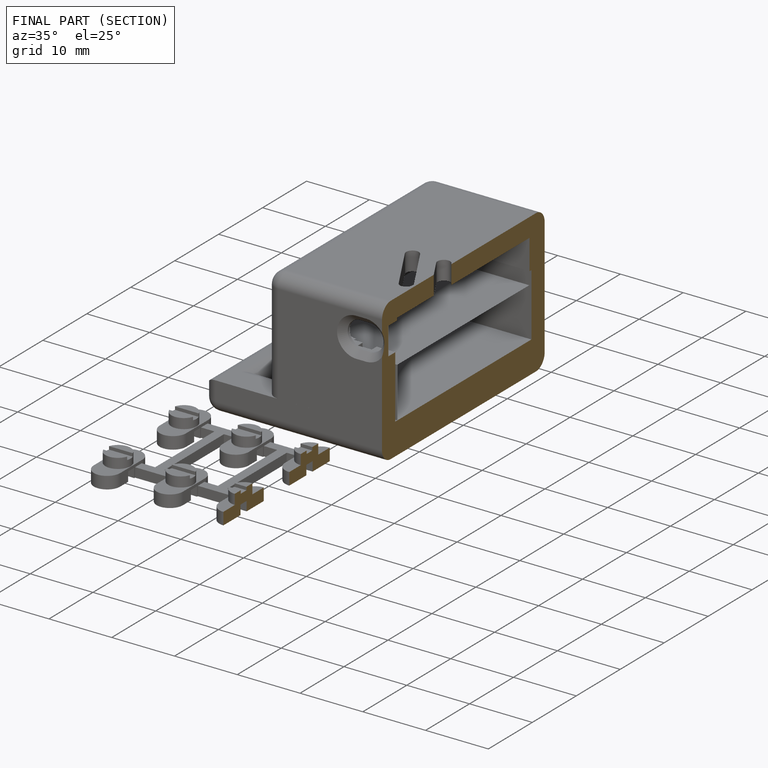
[diagram: finished part — half-section view (interior)]
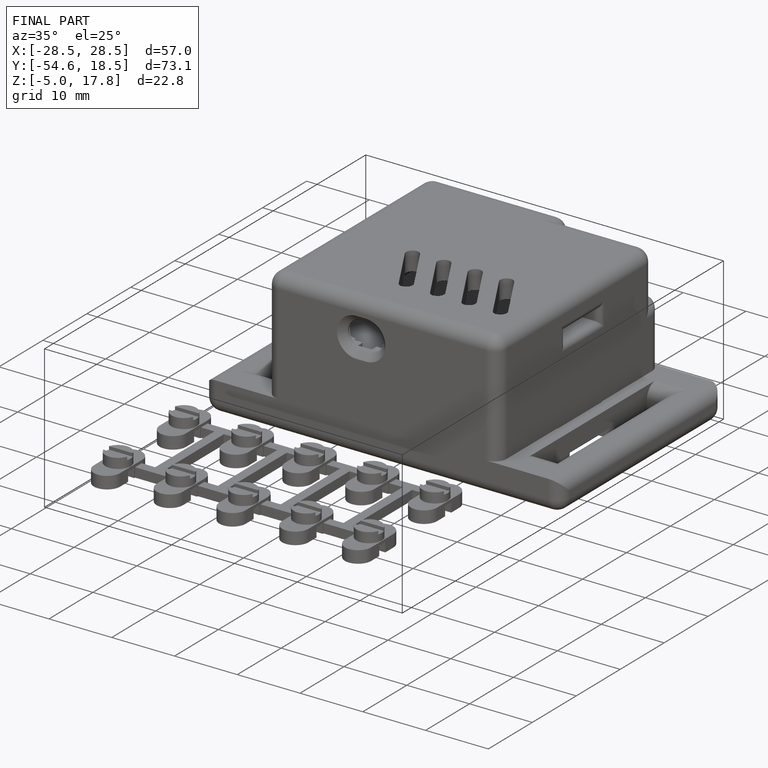
[diagram: finished part — iso view with bounding-box wireframe]
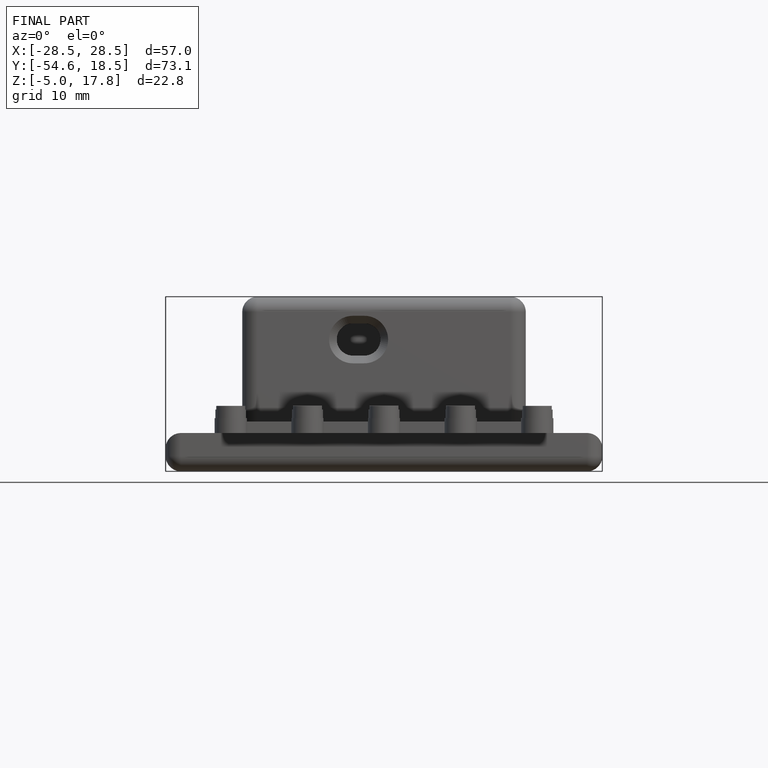
[diagram: finished part — front view with bounding-box wireframe]
